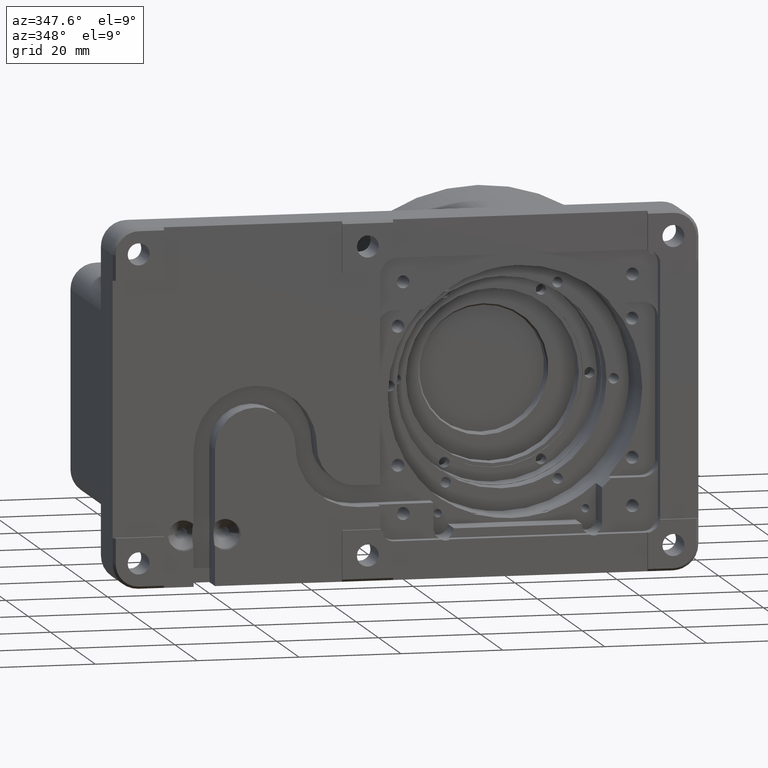
[diagram: clean part render]
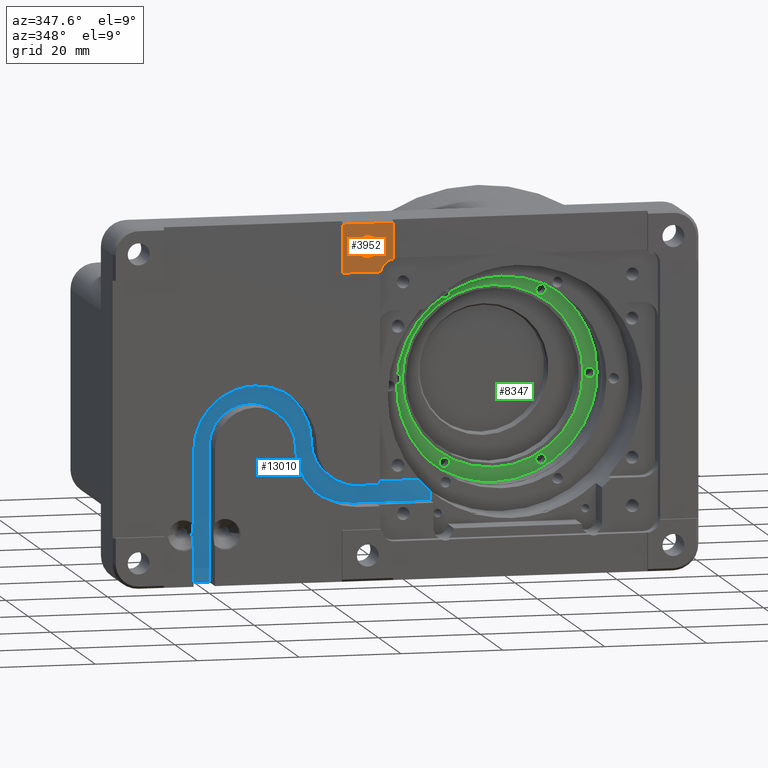
[diagram: same view with three faces highlighted in distinct colors, each labeled with its STEP entity id]
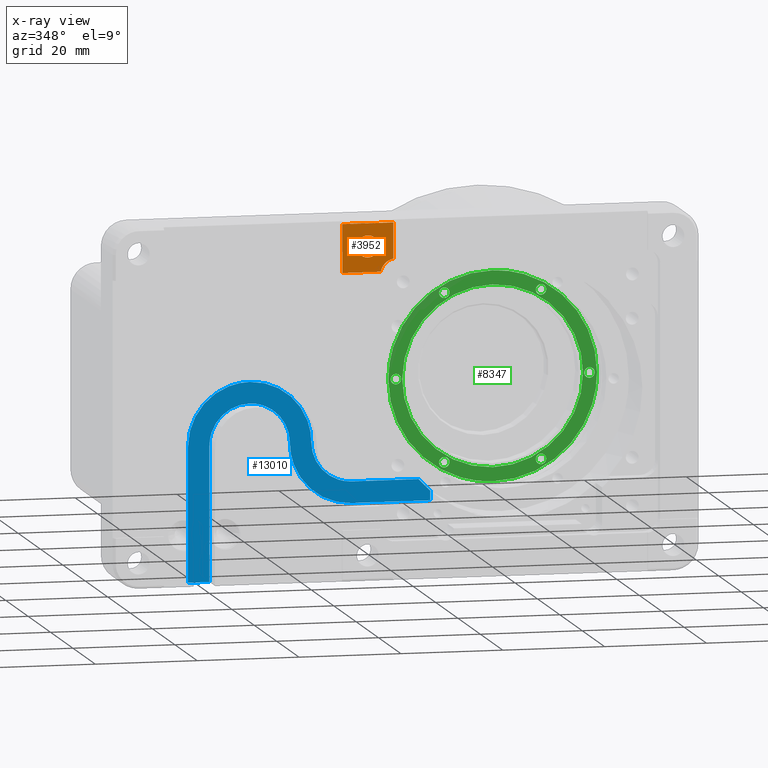
[diagram: x-ray of the same camera — body ghosted, the three highlighted faces saturated]
A machine part, auxiliary view with three faces highlighted in distinct colors.
The next image is the same camera in x-ray (body ghosted, the three faces saturated) — at least one of them is partly hidden behind the body in this view.
Their STEP definitions:

[orange] entity #3952 — the highlighted planar face has unit normal (-0, 1, 0).
#111 = VECTOR ( 'NONE', #4392, 1000.000000000000000 ) ;
#282 = ORIENTED_EDGE ( 'NONE', *, *, #55670, .F. ) ;
#355 = CARTESIAN_POINT ( 'NONE',  ( -27.85000000000000500, -25.00000000000000400, 30.28143434188408600 ) ) ;
#1597 = CARTESIAN_POINT ( 'NONE',  ( -81.77999999999998700, -25.00000000000000000, 25.00000000000000700 ) ) ;
#2105 = LINE ( 'NONE', #48283, #111 ) ;
#3683 = EDGE_CURVE ( 'NONE', #47504, #64228, #60884, .T. ) ;
#3704 = EDGE_CURVE ( 'NONE', #63735, #67301, #49895, .T. ) ;
#3900 = EDGE_LOOP ( 'NONE', ( #62045, #57249, #77045, #58884, #26476 ) ) ;
#3952 = ADVANCED_FACE ( 'NONE', ( #9898, #57921 ), #42573, .F. ) ;
#4392 = DIRECTION ( 'NONE',  ( 0.0000000000000000000, -0.0000000000000000000, 1.000000000000000000 ) ) ;
#4655 = CARTESIAN_POINT ( 'NONE',  ( -26.15037854727035300, -24.99999999999999600, 27.02422586694289200 ) ) ;
#5267 = VERTEX_POINT ( 'NONE', #6565 ) ;
#6565 = CARTESIAN_POINT ( 'NONE',  ( -35.00000000000002100, -24.99999999999999600, 34.50000000000000000 ) ) ;
#6691 = CARTESIAN_POINT ( 'NONE',  ( -28.12135926503834700, -24.99999999999999600, 31.08278080779742700 ) ) ;
#7412 = B_SPLINE_CURVE_WITH_KNOTS ( 'NONE', 3,
 ( #79767, #35951, #73459, #4655, #48557, #11001, #54829, #17323, #61108, #23584 ),
 .UNSPECIFIED., .F., .F.,
 ( 4, 2, 2, 2, 4 ),
 ( 0.0000000000000000000, 0.2500000000000000000, 0.5000000000000000000, 0.7500000000000000000, 1.000000000000000000 ),
 .UNSPECIFIED. ) ;
#8142 = CARTESIAN_POINT ( 'NONE',  ( -31.08278080779742700, -24.99999999999999600, 31.87864073496164600 ) ) ;
#8409 = CARTESIAN_POINT ( 'NONE',  ( -27.85000000000000500, -25.00000000000000000, 30.00000000000000000 ) ) ;
#8683 = CARTESIAN_POINT ( 'NONE',  ( -27.85000000000000500, -25.00000000000000400, 29.71856565811591400 ) ) ;
#8958 = CARTESIAN_POINT ( 'NONE',  ( -27.90595874516312900, -25.00000000000000400, 29.43724204862754900 ) ) ;
#9898 = FACE_OUTER_BOUND ( 'NONE', #3900, .T. ) ;
#10664 = CARTESIAN_POINT ( 'NONE',  ( -32.09404125483687400, -25.00000000000000400, 29.43724204862756000 ) ) ;
#11001 = CARTESIAN_POINT ( 'NONE',  ( -26.83979869103808700, -25.00000000000000700, 26.40284199608120000 ) ) ;
#11876 = CARTESIAN_POINT ( 'NONE',  ( -25.00000000000003200, -24.99999999999999300, 34.50000000000000000 ) ) ;
#13061 = CARTESIAN_POINT ( 'NONE',  ( -28.67872455205393600, -25.00000000000000700, 31.71928371115608800 ) ) ;
#13356 = CARTESIAN_POINT ( 'NONE',  ( -30.00000000000000000, -25.00000000000000000, 27.85000000000000500 ) ) ;
#14484 = CARTESIAN_POINT ( 'NONE',  ( -31.71928371115608800, -25.00000000000000700, 31.32127544794607100 ) ) ;
#14755 = CARTESIAN_POINT ( 'NONE',  ( -29.43724204862756000, -25.00000000000000400, 27.90595874516311900 ) ) ;
#15025 = DIRECTION ( 'NONE',  ( -0.0000000000000000000, 0.0000000000000000000, 1.000000000000000000 ) ) ;
#16746 = CARTESIAN_POINT ( 'NONE',  ( -29.71856565811591700, -25.00000000000000400, 27.85000000000000500 ) ) ;
#17009 = CARTESIAN_POINT ( 'NONE',  ( -31.71928371115608800, -25.00000000000000400, 28.67872455205393200 ) ) ;
#17017 = CARTESIAN_POINT ( 'NONE',  ( -25.00000000000000000, -25.00000000000000000, 35.17771043864000500 ) ) ;
#17323 = CARTESIAN_POINT ( 'NONE',  ( -27.30761997239375600, -25.00000000000000400, 25.60124278306354400 ) ) ;
#19173 = CARTESIAN_POINT ( 'NONE',  ( -27.45803989154987300, -25.00000000000000000, 25.00000000000000400 ) ) ;
#19311 = CARTESIAN_POINT ( 'NONE',  ( -29.43724204862754900, -25.00000000000000400, 32.09404125483686000 ) ) ;
#20482 = CARTESIAN_POINT ( 'NONE',  ( -30.28143434188408600, -25.00000000000000400, 32.14999999999999100 ) ) ;
#20756 = CARTESIAN_POINT ( 'NONE',  ( -32.09404125483686000, -25.00000000000000400, 30.56275795137245100 ) ) ;
#20897 = B_SPLINE_CURVE_WITH_KNOTS ( 'NONE', 3,
 ( #41923, #48223, #10664, #54514, #17009, #60778, #23252, #67060, #29600, #73395 ),
 .UNSPECIFIED., .F., .F.,
 ( 4, 2, 2, 2, 4 ),
 ( 0.0000000000000000000, 0.2500000000000000000, 0.5000000000000000000, 0.7500000000000000000, 1.000000000000000000 ),
 .UNSPECIFIED. ) ;
#21668 = DIRECTION ( 'NONE',  ( 0.0000000000000000000, -0.0000000000000000000, 1.000000000000000000 ) ) ;
#22214 = DIRECTION ( 'NONE',  ( -0.0000000000000000000, 1.000000000000000000, 0.0000000000000000000 ) ) ;
#23252 = CARTESIAN_POINT ( 'NONE',  ( -31.08278080779743000, -25.00000000000000400, 28.12135926503835000 ) ) ;
#23584 = CARTESIAN_POINT ( 'NONE',  ( -27.45803989154987300, -25.00000000000000000, 25.00000000000000400 ) ) ;
#24835 = VERTEX_POINT ( 'NONE', #66049 ) ;
#25615 = CARTESIAN_POINT ( 'NONE',  ( -30.00000000000000000, -25.00000000000000000, 32.14999999999999100 ) ) ;
#26476 = ORIENTED_EDGE ( 'NONE', *, *, #33625, .F. ) ;
#27068 = CARTESIAN_POINT ( 'NONE',  ( -32.14999999999999900, -25.00000000000000000, 30.00000000000000000 ) ) ;
#27770 = EDGE_CURVE ( 'NONE', #47504, #80780, #7412, .T. ) ;
#28515 = EDGE_CURVE ( 'NONE', #77257, #63735, #20897, .T. ) ;
#29600 = CARTESIAN_POINT ( 'NONE',  ( -30.28143434188408600, -25.00000000000000400, 27.85000000000000500 ) ) ;
#31326 = LINE ( 'NONE', #73436, #49934 ) ;
#33451 = ORIENTED_EDGE ( 'NONE', *, *, #57304, .F. ) ;
#33625 = EDGE_CURVE ( 'NONE', #5267, #64228, #31326, .T. ) ;
#35929 = DIRECTION ( 'NONE',  ( 1.000000000000000000, 0.0000000000000000000, 0.0000000000000000000 ) ) ;
#35951 = CARTESIAN_POINT ( 'NONE',  ( -25.30465349999737900, -25.00000000000000400, 27.40654405120166000 ) ) ;
#38949 = EDGE_CURVE ( 'NONE', #80780, #24835, #42677, .T. ) ;
#40367 = CARTESIAN_POINT ( 'NONE',  ( -81.77999999999998700, -25.00000000000000000, 35.88000000000000300 ) ) ;
#40756 = VECTOR ( 'NONE', #64326, 1000.000000000000000 ) ;
#41923 = CARTESIAN_POINT ( 'NONE',  ( -32.14999999999999900, -25.00000000000000000, 30.00000000000000000 ) ) ;
#42573 = PLANE ( 'NONE',  #60283 ) ;
#42677 = LINE ( 'NONE', #1597, #40756 ) ;
#44260 = CARTESIAN_POINT ( 'NONE',  ( -27.90595874516311900, -25.00000000000000400, 30.56275795137245400 ) ) ;
#45697 = CARTESIAN_POINT ( 'NONE',  ( -30.56275795137245400, -25.00000000000000400, 32.09404125483686000 ) ) ;
#47504 = VERTEX_POINT ( 'NONE', #73279 ) ;
#47760 = ORIENTED_EDGE ( 'NONE', *, *, #3704, .F. ) ;
#48223 = CARTESIAN_POINT ( 'NONE',  ( -32.14999999999998400, -25.00000000000000400, 29.71856565811591700 ) ) ;
#48283 = CARTESIAN_POINT ( 'NONE',  ( -35.00000000000000000, -25.00000000000000000, 35.88000000000000300 ) ) ;
#48557 = CARTESIAN_POINT ( 'NONE',  ( -26.40284199608119700, -25.00000000000000400, 26.83979869103808700 ) ) ;
#49895 = B_SPLINE_CURVE_WITH_KNOTS ( 'NONE', 3,
 ( #72882, #16746, #14755, #72238, #74172, #73929, #73140, #8958, #8683, #8409 ),
 .UNSPECIFIED., .F., .F.,
 ( 4, 2, 2, 2, 4 ),
 ( 0.0000000000000000000, 0.2500000000000000000, 0.5000000000000000000, 0.7500000000000000000, 1.000000000000000000 ),
 .UNSPECIFIED. ) ;
#49934 = VECTOR ( 'NONE', #35929, 1000.000000000000000 ) ;
#50574 = CARTESIAN_POINT ( 'NONE',  ( -28.28071628884392300, -25.00000000000000400, 31.32127544794605700 ) ) ;
#52019 = CARTESIAN_POINT ( 'NONE',  ( -31.32127544794605700, -25.00000000000000400, 31.71928371115608100 ) ) ;
#54514 = CARTESIAN_POINT ( 'NONE',  ( -31.87864073496163900, -24.99999999999999600, 28.91721919220256300 ) ) ;
#54829 = CARTESIAN_POINT ( 'NONE',  ( -27.02422586694289200, -25.00000000000000400, 26.15037854727036800 ) ) ;
#55670 = EDGE_CURVE ( 'NONE', #67301, #76318, #61697, .T. ) ;
#56846 = CARTESIAN_POINT ( 'NONE',  ( -28.91721919220257000, -25.00000000000000400, 31.87864073496164600 ) ) ;
#57249 = ORIENTED_EDGE ( 'NONE', *, *, #38949, .F. ) ;
#57304 = EDGE_CURVE ( 'NONE', #76318, #77257, #74988, .T. ) ;
#57921 = FACE_BOUND ( 'NONE', #74844, .T. ) ;
#58291 = CARTESIAN_POINT ( 'NONE',  ( -31.87864073496164600, -25.00000000000000400, 31.08278080779743400 ) ) ;
#58884 = ORIENTED_EDGE ( 'NONE', *, *, #3683, .T. ) ;
#60283 = AXIS2_PLACEMENT_3D ( 'NONE', #40367, #22214, #21668 ) ;
#60778 = CARTESIAN_POINT ( 'NONE',  ( -31.32127544794606400, -25.00000000000000700, 28.28071628884392300 ) ) ;
#60884 = LINE ( 'NONE', #17017, #64792 ) ;
#61108 = CARTESIAN_POINT ( 'NONE',  ( -27.40654405120166700, -25.00000000000000400, 25.30465349999740000 ) ) ;
#61697 = B_SPLINE_CURVE_WITH_KNOTS ( 'NONE', 3,
 ( #75456, #355, #44260, #6691, #50574, #13061, #56846, #19311, #63097, #25615 ),
 .UNSPECIFIED., .F., .F.,
 ( 4, 2, 2, 2, 4 ),
 ( 0.0000000000000000000, 0.2500000000000000000, 0.5000000000000000000, 0.7500000000000000000, 1.000000000000000000 ),
 .UNSPECIFIED. ) ;
#62045 = ORIENTED_EDGE ( 'NONE', *, *, #66841, .F. ) ;
#63097 = CARTESIAN_POINT ( 'NONE',  ( -29.71856565811591400, -25.00000000000000400, 32.14999999999999100 ) ) ;
#63735 = VERTEX_POINT ( 'NONE', #13356 ) ;
#64160 = ORIENTED_EDGE ( 'NONE', *, *, #28515, .F. ) ;
#64228 = VERTEX_POINT ( 'NONE', #11876 ) ;
#64326 = DIRECTION ( 'NONE',  ( -1.000000000000000000, -0.0000000000000000000, -0.0000000000000000000 ) ) ;
#64514 = CARTESIAN_POINT ( 'NONE',  ( -32.14999999999999100, -25.00000000000000400, 30.28143434188408600 ) ) ;
#64633 = CARTESIAN_POINT ( 'NONE',  ( -32.14999999999999900, -25.00000000000000000, 30.00000000000000000 ) ) ;
#64792 = VECTOR ( 'NONE', #15025, 1000.000000000000000 ) ;
#66049 = CARTESIAN_POINT ( 'NONE',  ( -35.00000000000000000, -25.00000000000000400, 25.00000000000000700 ) ) ;
#66841 = EDGE_CURVE ( 'NONE', #24835, #5267, #2105, .T. ) ;
#67060 = CARTESIAN_POINT ( 'NONE',  ( -30.56275795137245100, -25.00000000000000400, 27.90595874516312900 ) ) ;
#67301 = VERTEX_POINT ( 'NONE', #71476 ) ;
#71476 = CARTESIAN_POINT ( 'NONE',  ( -27.85000000000000500, -25.00000000000000000, 30.00000000000000000 ) ) ;
#72238 = CARTESIAN_POINT ( 'NONE',  ( -28.91721919220256300, -24.99999999999999600, 28.12135926503834700 ) ) ;
#72882 = CARTESIAN_POINT ( 'NONE',  ( -30.00000000000000000, -25.00000000000000000, 27.85000000000000500 ) ) ;
#73070 = CARTESIAN_POINT ( 'NONE',  ( -30.00000000000000000, -25.00000000000000000, 32.14999999999999100 ) ) ;
#73140 = CARTESIAN_POINT ( 'NONE',  ( -28.12135926503835000, -25.00000000000000400, 28.91721919220257000 ) ) ;
#73279 = CARTESIAN_POINT ( 'NONE',  ( -25.00000000000000000, -25.00000000000000000, 27.45803989154985200 ) ) ;
#73395 = CARTESIAN_POINT ( 'NONE',  ( -30.00000000000000000, -25.00000000000000000, 27.85000000000000500 ) ) ;
#73436 = CARTESIAN_POINT ( 'NONE',  ( 32.10000000000000100, -24.99999999999999300, 34.50000000000000000 ) ) ;
#73459 = CARTESIAN_POINT ( 'NONE',  ( -25.60124278306353300, -25.00000000000000400, 27.30761997239375600 ) ) ;
#73929 = CARTESIAN_POINT ( 'NONE',  ( -28.28071628884392300, -25.00000000000000700, 28.67872455205393600 ) ) ;
#74172 = CARTESIAN_POINT ( 'NONE',  ( -28.67872455205393200, -25.00000000000000400, 28.28071628884392300 ) ) ;
#74844 = EDGE_LOOP ( 'NONE', ( #33451, #282, #47760, #64160 ) ) ;
#74988 = B_SPLINE_CURVE_WITH_KNOTS ( 'NONE', 3,
 ( #76925, #20482, #45697, #8142, #52019, #14484, #58291, #20756, #64514, #27068 ),
 .UNSPECIFIED., .F., .F.,
 ( 4, 2, 2, 2, 4 ),
 ( 0.0000000000000000000, 0.2500000000000000000, 0.5000000000000000000, 0.7500000000000000000, 1.000000000000000000 ),
 .UNSPECIFIED. ) ;
#75456 = CARTESIAN_POINT ( 'NONE',  ( -27.85000000000000500, -25.00000000000000000, 30.00000000000000000 ) ) ;
#76318 = VERTEX_POINT ( 'NONE', #73070 ) ;
#76925 = CARTESIAN_POINT ( 'NONE',  ( -30.00000000000000000, -25.00000000000000000, 32.14999999999999100 ) ) ;
#77045 = ORIENTED_EDGE ( 'NONE', *, *, #27770, .F. ) ;
#77257 = VERTEX_POINT ( 'NONE', #64633 ) ;
#79767 = CARTESIAN_POINT ( 'NONE',  ( -25.00000000000000000, -25.00000000000000000, 27.45803989154985200 ) ) ;
#80780 = VERTEX_POINT ( 'NONE', #19173 ) ;

[blue] entity #13010 — the highlighted planar face has unit normal (0, 1, -0).
#86 = EDGE_CURVE ( 'NONE', #35732, #36363, #39329, .T. ) ;
#249 = VECTOR ( 'NONE', #79041, 1000.000000000000000 ) ;
#1078 = CARTESIAN_POINT ( 'NONE',  ( -48.02141005506991400, -19.50000000000000400, -1.597087532001359600 ) ) ;
#1203 = ORIENTED_EDGE ( 'NONE', *, *, #64711, .F. ) ;
#1426 = CARTESIAN_POINT ( 'NONE',  ( -59.90000000000000600, -19.50000000000000000, -8.500000000000000000 ) ) ;
#1857 = CARTESIAN_POINT ( 'NONE',  ( -63.78506938768663300, -19.50000000000000400, -5.332850599252706700 ) ) ;
#2740 = CARTESIAN_POINT ( 'NONE',  ( -38.90291246799864000, -19.50000000000000400, -12.47858994493011100 ) ) ;
#3048 = B_SPLINE_CURVE_WITH_KNOTS ( 'NONE', 3,
 ( #34030, #71547, #40378, #2740, #46630, #9081, #52948, #15421, #59216, #21679 ),
 .UNSPECIFIED., .F., .F.,
 ( 4, 2, 2, 2, 4 ),
 ( 0.0000000000000000000, 0.2499999999999999400, 0.4999999999999998900, 0.7499999999999997800, 1.000000000000000000 ),
 .UNSPECIFIED. ) ;
#3430 = CARTESIAN_POINT ( 'NONE',  ( -42.32403120698202100, -19.50000000000000700, -1.063984688303528200 ) ) ;
#3717 = ORIENTED_EDGE ( 'NONE', *, *, #39649, .F. ) ;
#3735 = CARTESIAN_POINT ( 'NONE',  ( -39.90000000000000600, -19.50000000000000400, -8.500000000000001800 ) ) ;
#3988 = VERTEX_POINT ( 'NONE', #15687 ) ;
#4586 = ORIENTED_EDGE ( 'NONE', *, *, #72266, .F. ) ;
#4635 = CARTESIAN_POINT ( 'NONE',  ( -64.09999999999999400, -19.50000000000000000, -35.00000000000000000 ) ) ;
#5747 = EDGE_CURVE ( 'NONE', #56606, #14358, #6638, .T. ) ;
#6367 = LINE ( 'NONE', #9432, #19143 ) ;
#6638 = LINE ( 'NONE', #19160, #71367 ) ;
#6816 = CARTESIAN_POINT ( 'NONE',  ( -52.00000000000001400, -19.50000000000000000, -0.5999999999999963100 ) ) ;
#7080 = AXIS2_PLACEMENT_3D ( 'NONE', #50832, #19576, #63340 ) ;
#7292 = CARTESIAN_POINT ( 'NONE',  ( -52.00000000000001400, -19.50000000000000000, 3.600000000000005900 ) ) ;
#7423 = CARTESIAN_POINT ( 'NONE',  ( -50.96589241819337000, -19.50000000000000400, -0.5999999999999963100 ) ) ;
#8219 = CARTESIAN_POINT ( 'NONE',  ( -61.67596879301800100, -19.50000000000000400, -1.063984688303528200 ) ) ;
#8657 = CARTESIAN_POINT ( 'NONE',  ( -52.00000000000001400, -19.50000000000000000, -0.5999999999999963100 ) ) ;
#9081 = CARTESIAN_POINT ( 'NONE',  ( -36.85491908780183200, -19.50000000000000400, -14.81736805494562000 ) ) ;
#9351 = CARTESIAN_POINT ( 'NONE',  ( -18.86902223221987600, -19.50000000000000000, -16.39999999999991000 ) ) ;
#9432 = CARTESIAN_POINT ( 'NONE',  ( -16.54999999999997600, -19.50000000000000000, -35.77199999999999800 ) ) ;
#9745 = CARTESIAN_POINT ( 'NONE',  ( -40.21493061231338100, -19.50000000000000400, -5.332850599252714700 ) ) ;
#9847 = CARTESIAN_POINT ( 'NONE',  ( -16.54999999999998600, -19.50000000000000000, -20.60000000000000100 ) ) ;
#11373 = VERTEX_POINT ( 'NONE', #1426 ) ;
#13010 = ADVANCED_FACE ( 'NONE', ( #14776 ), #31949, .F. ) ;
#13667 = B_SPLINE_CURVE_WITH_KNOTS ( 'NONE', 3,
 ( #19766, #57307, #69902, #32399, #76190, #38720, #1078, #44973, #7423, #51290 ),
 .UNSPECIFIED., .F., .F.,
 ( 4, 2, 2, 2, 4 ),
 ( 0.0000000000000000000, 0.2500000000000000000, 0.5000000000000000000, 0.7500000000000000000, 1.000000000000000000 ),
 .UNSPECIFIED. ) ;
#14358 = VERTEX_POINT ( 'NONE', #4635 ) ;
#14557 = CARTESIAN_POINT ( 'NONE',  ( -58.09378966248791400, -19.50000000000000400, 2.072815299086522500 ) ) ;
#14776 = FACE_OUTER_BOUND ( 'NONE', #44775, .T. ) ;
#15001 = CARTESIAN_POINT ( 'NONE',  ( -53.03410758180665900, -19.50000000000000000, -0.5999999999999963100 ) ) ;
#15066 = CARTESIAN_POINT ( 'NONE',  ( -33.58388629618485800, -19.50000000000000000, -20.60000000000000100 ) ) ;
#15421 = CARTESIAN_POINT ( 'NONE',  ( -34.06780828643831400, -19.50000000000000400, -16.19438414567969500 ) ) ;
#15500 = CARTESIAN_POINT ( 'NONE',  ( -43.78506938768661200, -19.50000000000000400, -11.66714940074729700 ) ) ;
#15598 = CARTESIAN_POINT ( 'NONE',  ( -42.57281529908653500, -19.50000000000000400, -14.59378966248788600 ) ) ;
#15685 = CARTESIAN_POINT ( 'NONE',  ( -41.67596879301798700, -19.50000000000000700, -15.93601531169647600 ) ) ;
#15687 = CARTESIAN_POINT ( 'NONE',  ( -16.54999999999991900, -19.50000000000000400, -18.73759589701979400 ) ) ;
#15882 = CARTESIAN_POINT ( 'NONE',  ( -39.43601531169648000, -19.50000000000000400, -18.17596879301797900 ) ) ;
#16118 = CARTESIAN_POINT ( 'NONE',  ( -39.90000000000000600, -19.50000000000000400, -8.500000000000001800 ) ) ;
#16174 = CARTESIAN_POINT ( 'NONE',  ( -38.09378966248788600, -19.49999999999999300, -19.07281529908651800 ) ) ;
#16260 = ORIENTED_EDGE ( 'NONE', *, *, #69876, .F. ) ;
#16272 = CARTESIAN_POINT ( 'NONE',  ( -32.00000000000000000, -19.50000000000000000, -20.60000000000000100 ) ) ;
#17505 = LINE ( 'NONE', #37065, #80224 ) ;
#19143 = VECTOR ( 'NONE', #46978, 1000.000000000000000 ) ;
#19160 = CARTESIAN_POINT ( 'NONE',  ( 32.10000000000000100, -19.50000000000000000, -35.00000000000000000 ) ) ;
#19576 = DIRECTION ( 'NONE',  ( 0.0000000000000000000, 1.000000000000000000, -0.0000000000000000000 ) ) ;
#19679 = CARTESIAN_POINT ( 'NONE',  ( -32.00000000000000000, -19.50000000000000000, -16.40000000000000200 ) ) ;
#19766 = CARTESIAN_POINT ( 'NONE',  ( -44.10000000000000100, -19.50000000000000000, -8.499999999999978700 ) ) ;
#20617 = VERTEX_POINT ( 'NONE', #51819 ) ;
#20654 = CARTESIAN_POINT ( 'NONE',  ( -18.86902223221987600, -19.50000000000000000, -16.39999999999991000 ) ) ;
#20834 = CARTESIAN_POINT ( 'NONE',  ( -53.58388629618487200, -19.50000000000000400, 3.600000000000005000 ) ) ;
#21205 = VERTEX_POINT ( 'NONE', #9847 ) ;
#21262 = CARTESIAN_POINT ( 'NONE',  ( -55.97858994493010700, -19.49999999999999300, -1.597087532001361600 ) ) ;
#21679 = CARTESIAN_POINT ( 'NONE',  ( -32.00000000000000000, -19.50000000000000000, -16.40000000000000200 ) ) ;
#21915 = B_SPLINE_CURVE_WITH_KNOTS ( 'NONE', 3,
 ( #20654, #51914, #26973, #70775 ),
 .UNSPECIFIED., .F., .F.,
 ( 4, 4 ),
 ( 0.0000000000000000000, 1.000000000000000000 ),
 .UNSPECIFIED. ) ;
#22574 = ORIENTED_EDGE ( 'NONE', *, *, #76206, .F. ) ;
#23627 = EDGE_CURVE ( 'NONE', #20617, #40205, #24691, .T. ) ;
#24184 = EDGE_CURVE ( 'NONE', #63225, #11373, #38975, .T. ) ;
#24691 = B_SPLINE_CURVE_WITH_KNOTS ( 'NONE', 3,
 ( #77000, #39509, #1857, #45774, #8219, #52102, #14557, #58364, #20834, #64591 ),
 .UNSPECIFIED., .F., .F.,
 ( 4, 2, 2, 2, 4 ),
 ( 0.0000000000000000000, 0.2500000000000000000, 0.5000000000000000000, 0.7500000000000000000, 1.000000000000000000 ),
 .UNSPECIFIED. ) ;
#25742 = CARTESIAN_POINT ( 'NONE',  ( -44.10000000000000100, -19.50000000000000000, -8.499999999999978700 ) ) ;
#26973 = CARTESIAN_POINT ( 'NONE',  ( -17.37323931261054700, -19.50000000000000400, -18.01046896469664200 ) ) ;
#27594 = CARTESIAN_POINT ( 'NONE',  ( -58.31736805494563200, -19.50000000000000700, -3.645080912198171300 ) ) ;
#28154 = CARTESIAN_POINT ( 'NONE',  ( -59.90000000000000600, -19.50000000000000000, -35.77199999999999800 ) ) ;
#28410 = CARTESIAN_POINT ( 'NONE',  ( -50.41611370381514900, -19.50000000000000000, 3.600000000000005400 ) ) ;
#29243 = EDGE_CURVE ( 'NONE', #47010, #3988, #21915, .T. ) ;
#30105 = DIRECTION ( 'NONE',  ( -1.000000000000000000, 0.0000000000000000000, -0.0000000000000000000 ) ) ;
#31073 = EDGE_CURVE ( 'NONE', #35244, #47010, #33689, .T. ) ;
#31949 = PLANE ( 'NONE',  #7080 ) ;
#32399 = CARTESIAN_POINT ( 'NONE',  ( -45.09708753200136800, -19.49999999999999300, -4.521410055069890400 ) ) ;
#33689 = LINE ( 'NONE', #66365, #249 ) ;
#33894 = CARTESIAN_POINT ( 'NONE',  ( -59.69438414567970600, -19.50000000000000400, -6.432191713561683100 ) ) ;
#33942 = ORIENTED_EDGE ( 'NONE', *, *, #23627, .F. ) ;
#34030 = CARTESIAN_POINT ( 'NONE',  ( -39.90000000000000600, -19.50000000000000400, -8.500000000000001800 ) ) ;
#34449 = DIRECTION ( 'NONE',  ( -0.0000000000000000000, -0.0000000000000000000, -1.000000000000000000 ) ) ;
#34712 = CARTESIAN_POINT ( 'NONE',  ( -48.83285059925273000, -19.50000000000000700, 3.285069387686624200 ) ) ;
#35244 = VERTEX_POINT ( 'NONE', #19679 ) ;
#35732 = VERTEX_POINT ( 'NONE', #69433 ) ;
#35921 = CARTESIAN_POINT ( 'NONE',  ( -44.10000000000000900, -19.50000000000000400, -10.08388629618485400 ) ) ;
#36169 = VECTOR ( 'NONE', #34449, 1000.000000000000000 ) ;
#36363 = VERTEX_POINT ( 'NONE', #73675 ) ;
#36422 = ORIENTED_EDGE ( 'NONE', *, *, #86, .F. ) ;
#36846 = ORIENTED_EDGE ( 'NONE', *, *, #59770, .F. ) ;
#37065 = CARTESIAN_POINT ( 'NONE',  ( -64.09999999999999400, -19.49999999999999600, -35.53000000000000100 ) ) ;
#38720 = CARTESIAN_POINT ( 'NONE',  ( -47.14508091219816100, -19.50000000000000700, -2.182631945054373600 ) ) ;
#38975 = B_SPLINE_CURVE_WITH_KNOTS ( 'NONE', 3,
 ( #8657, #15001, #58791, #21262, #65066, #27594, #71400, #33894, #77716, #40218 ),
 .UNSPECIFIED., .F., .F.,
 ( 4, 2, 2, 2, 4 ),
 ( 0.0000000000000000000, 0.2500000000000000000, 0.5000000000000000000, 0.7500000000000000000, 1.000000000000000000 ),
 .UNSPECIFIED. ) ;
#39329 = B_SPLINE_CURVE_WITH_KNOTS ( 'NONE', 3,
 ( #16272, #15066, #55671, #16174, #15882, #15685, #15598, #15500, #35921, #25742 ),
 .UNSPECIFIED., .F., .F.,
 ( 4, 2, 2, 2, 4 ),
 ( 0.0000000000000000000, 0.2500000000000000000, 0.5000000000000000000, 0.7500000000000000000, 1.000000000000000000 ),
 .UNSPECIFIED. ) ;
#39509 = CARTESIAN_POINT ( 'NONE',  ( -64.10000000000002300, -19.50000000000000000, -6.916113703815148600 ) ) ;
#39649 = EDGE_CURVE ( 'NONE', #40205, #62060, #45503, .T. ) ;
#40205 = VERTEX_POINT ( 'NONE', #7292 ) ;
#40218 = CARTESIAN_POINT ( 'NONE',  ( -59.90000000000000600, -19.50000000000000000, -8.500000000000000000 ) ) ;
#40378 = CARTESIAN_POINT ( 'NONE',  ( -39.69438414567970600, -19.50000000000000400, -10.56780828643832000 ) ) ;
#41048 = CARTESIAN_POINT ( 'NONE',  ( -44.56398468830353500, -19.50000000000000400, 1.175968793017983400 ) ) ;
#44258 = ORIENTED_EDGE ( 'NONE', *, *, #5747, .F. ) ;
#44775 = EDGE_LOOP ( 'NONE', ( #3717, #33942, #52139, #44258, #16260, #58042, #36846, #36422, #22574, #1203, #76560, #77272, #4586 ) ) ;
#44973 = CARTESIAN_POINT ( 'NONE',  ( -49.93219171356170700, -19.50000000000000400, -0.8056158543203036900 ) ) ;
#45503 = B_SPLINE_CURVE_WITH_KNOTS ( 'NONE', 3,
 ( #72221, #28410, #34712, #78541, #41048, #3430, #47285, #9745, #53623, #16118 ),
 .UNSPECIFIED., .F., .F.,
 ( 4, 2, 2, 2, 4 ),
 ( 0.0000000000000000000, 0.2500000000000000000, 0.5000000000000000000, 0.7500000000000000000, 1.000000000000000000 ),
 .UNSPECIFIED. ) ;
#45774 = CARTESIAN_POINT ( 'NONE',  ( -62.57281529908652100, -19.49999999999999300, -2.406210337512112700 ) ) ;
#46630 = CARTESIAN_POINT ( 'NONE',  ( -38.31736805494563200, -19.50000000000000400, -13.35491908780182900 ) ) ;
#46978 = DIRECTION ( 'NONE',  ( -0.0000000000000000000, -0.0000000000000000000, -1.000000000000000000 ) ) ;
#47010 = VERTEX_POINT ( 'NONE', #9351 ) ;
#47275 = DIRECTION ( 'NONE',  ( -1.000000000000000000, 0.0000000000000000000, -0.0000000000000000000 ) ) ;
#47285 = CARTESIAN_POINT ( 'NONE',  ( -41.42718470091347900, -19.50000000000000400, -2.406210337512118900 ) ) ;
#50832 = CARTESIAN_POINT ( 'NONE',  ( -15.59899999999999800, -19.50000000000000000, -35.77199999999999800 ) ) ;
#51290 = CARTESIAN_POINT ( 'NONE',  ( -52.00000000000001400, -19.50000000000000000, -0.5999999999999963100 ) ) ;
#51819 = CARTESIAN_POINT ( 'NONE',  ( -64.10000000000000900, -19.49999999999999600, -8.500000000000000000 ) ) ;
#51914 = CARTESIAN_POINT ( 'NONE',  ( -18.14848557420786400, -19.50000000000000400, -17.22901354994843400 ) ) ;
#52102 = CARTESIAN_POINT ( 'NONE',  ( -59.43601531169648700, -19.50000000000000700, 1.175968793017982700 ) ) ;
#52139 = ORIENTED_EDGE ( 'NONE', *, *, #56190, .T. ) ;
#52844 = LINE ( 'NONE', #28154, #36169 ) ;
#52948 = CARTESIAN_POINT ( 'NONE',  ( -35.97858994493010700, -19.50000000000000000, -15.40291246799863200 ) ) ;
#53623 = CARTESIAN_POINT ( 'NONE',  ( -39.90000000000000600, -19.50000000000000400, -6.916113703815150300 ) ) ;
#55051 = CARTESIAN_POINT ( 'NONE',  ( -59.90000000000000600, -19.50000000000000000, -35.00000000000000000 ) ) ;
#55671 = CARTESIAN_POINT ( 'NONE',  ( -35.16714940074730600, -19.50000000000000400, -20.28506938768661900 ) ) ;
#55785 = VECTOR ( 'NONE', #47275, 1000.000000000000000 ) ;
#56190 = EDGE_CURVE ( 'NONE', #20617, #14358, #17505, .T. ) ;
#56606 = VERTEX_POINT ( 'NONE', #55051 ) ;
#57307 = CARTESIAN_POINT ( 'NONE',  ( -44.10000000000000100, -19.50000000000000000, -7.465892418193355700 ) ) ;
#57774 = LINE ( 'NONE', #78527, #55785 ) ;
#58042 = ORIENTED_EDGE ( 'NONE', *, *, #24184, .F. ) ;
#58364 = CARTESIAN_POINT ( 'NONE',  ( -55.16714940074731300, -19.50000000000000400, 3.285069387686624200 ) ) ;
#58791 = CARTESIAN_POINT ( 'NONE',  ( -54.06780828643833600, -19.50000000000000400, -0.8056158543203048000 ) ) ;
#59216 = CARTESIAN_POINT ( 'NONE',  ( -33.03410758180662300, -19.50000000000000000, -16.39999999999999500 ) ) ;
#59770 = EDGE_CURVE ( 'NONE', #36363, #63225, #13667, .T. ) ;
#62060 = VERTEX_POINT ( 'NONE', #3735 ) ;
#63225 = VERTEX_POINT ( 'NONE', #6816 ) ;
#63340 = DIRECTION ( 'NONE',  ( 0.0000000000000000000, 0.0000000000000000000, 1.000000000000000000 ) ) ;
#64591 = CARTESIAN_POINT ( 'NONE',  ( -52.00000000000001400, -19.50000000000000000, 3.600000000000005900 ) ) ;
#64711 = EDGE_CURVE ( 'NONE', #3988, #21205, #6367, .T. ) ;
#65066 = CARTESIAN_POINT ( 'NONE',  ( -56.85491908780183900, -19.50000000000000400, -2.182631945054375900 ) ) ;
#66365 = CARTESIAN_POINT ( 'NONE',  ( -15.59899999999999800, -19.50000000000000000, -16.40000000000000200 ) ) ;
#69433 = CARTESIAN_POINT ( 'NONE',  ( -32.00000000000000000, -19.50000000000000000, -20.60000000000000100 ) ) ;
#69876 = EDGE_CURVE ( 'NONE', #11373, #56606, #52844, .T. ) ;
#69902 = CARTESIAN_POINT ( 'NONE',  ( -44.30561585432031500, -19.50000000000000400, -6.432191713561683100 ) ) ;
#70775 = CARTESIAN_POINT ( 'NONE',  ( -16.54999999999991900, -19.50000000000000400, -18.73759589701979400 ) ) ;
#71367 = VECTOR ( 'NONE', #30105, 1000.000000000000000 ) ;
#71400 = CARTESIAN_POINT ( 'NONE',  ( -58.90291246799865400, -19.50000000000000400, -4.521410055069892100 ) ) ;
#71547 = CARTESIAN_POINT ( 'NONE',  ( -39.90000000000001300, -19.50000000000000400, -9.534107581806639000 ) ) ;
#72221 = CARTESIAN_POINT ( 'NONE',  ( -52.00000000000001400, -19.50000000000000000, 3.600000000000005900 ) ) ;
#72266 = EDGE_CURVE ( 'NONE', #62060, #35244, #3048, .T. ) ;
#73675 = CARTESIAN_POINT ( 'NONE',  ( -44.10000000000000100, -19.50000000000000000, -8.499999999999978700 ) ) ;
#76190 = CARTESIAN_POINT ( 'NONE',  ( -45.68263194505438900, -19.50000000000000400, -3.645080912198168700 ) ) ;
#76206 = EDGE_CURVE ( 'NONE', #21205, #35732, #57774, .T. ) ;
#76560 = ORIENTED_EDGE ( 'NONE', *, *, #29243, .F. ) ;
#77000 = CARTESIAN_POINT ( 'NONE',  ( -64.10000000000000900, -19.49999999999999600, -8.500000000000000000 ) ) ;
#77272 = ORIENTED_EDGE ( 'NONE', *, *, #31073, .F. ) ;
#77716 = CARTESIAN_POINT ( 'NONE',  ( -59.90000000000000600, -19.50000000000000400, -7.465892418193361000 ) ) ;
#78527 = CARTESIAN_POINT ( 'NONE',  ( -15.59899999999999800, -19.50000000000000000, -20.60000000000000100 ) ) ;
#78541 = CARTESIAN_POINT ( 'NONE',  ( -45.90621033751211400, -19.50000000000000400, 2.072815299086525200 ) ) ;
#79041 = DIRECTION ( 'NONE',  ( 1.000000000000000000, -0.0000000000000000000, 0.0000000000000000000 ) ) ;
#80224 = VECTOR ( 'NONE', #80863, 1000.000000000000000 ) ;
#80863 = DIRECTION ( 'NONE',  ( -0.0000000000000000000, -0.0000000000000000000, -1.000000000000000000 ) ) ;

[green] entity #8347 — the highlighted planar face has unit normal (0, -1, -0).
#59 = CARTESIAN_POINT ( 'NONE',  ( -19.13537293096322100, 0.0000000000000000000, -1.025072639140788500 ) ) ;
#198 = CARTESIAN_POINT ( 'NONE',  ( -16.84476541190646900, -0.0000000000000000000, -5.716218328537738800 ) ) ;
#645 = CARTESIAN_POINT ( 'NONE',  ( 4.605588407540002600, -0.0000000000000000000, 17.18167131515601300 ) ) ;
#929 = CARTESIAN_POINT ( 'NONE',  ( 17.75000000000000700, -0.0000000000000000000, 1.165666391839071100 ) ) ;
#1412 = CARTESIAN_POINT ( 'NONE',  ( 19.26728351683444600, -0.0000000000000000000, 0.9985855835583691300 ) ) ;
#1536 = CARTESIAN_POINT ( 'NONE',  ( -10.34518201746626400, -0.0000000000000000000, -17.04532616468310700 ) ) ;
#1542 = FACE_BOUND ( 'NONE', #42995, .T. ) ;
#1565 = CARTESIAN_POINT ( 'NONE',  ( -5.318835094366035900, -0.0000000000000000000, 19.84370990658611700 ) ) ;
#1615 = CARTESIAN_POINT ( 'NONE',  ( -17.97500000000001200, 0.0000000000000000000, -0.1355483029900326800 ) ) ;
#1692 = CARTESIAN_POINT ( 'NONE',  ( -9.064636258101142400, -0.0000000000000000000, 17.38944060429799900 ) ) ;
#1790 = CARTESIAN_POINT ( 'NONE',  ( -19.51727790274905800, 0.0000000000000000000, 0.8950340974409123400 ) ) ;
#1797 = CARTESIAN_POINT ( 'NONE',  ( -9.937397554991045800, 0.0000000000000000000, -15.52038631585813800 ) ) ;
#1827 = CARTESIAN_POINT ( 'NONE',  ( -20.50000000000000400, -0.0000000000000000000, 1.346417475460221200 ) ) ;
#1855 = B_SPLINE_CURVE_WITH_KNOTS ( 'NONE', 3,
 ( #67567, #30104, #36396, #80204, #42687, #5106, #48991, #11444, #55279, #17749, #61524, #24030, #67845, #30380, #74135, #36674, #80478, #42953, #5373, #49267 ),
 .UNSPECIFIED., .F., .F.,
 ( 4, 2, 2, 2, 2, 2, 2, 2, 2, 4 ),
 ( 0.0000000000000000000, 0.1250000000000012200, 0.2500000000000024400, 0.3750000000000036600, 0.5000000000000048800, 0.5625000000000055500, 0.6250000000000061100, 0.7500000000000041100, 0.8750000000000021100, 1.000000000000000000 ),
 .UNSPECIFIED. ) ;
#1918 = EDGE_CURVE ( 'NONE', #59871, #29205, #33555, .T. ) ;
#1977 = CARTESIAN_POINT ( 'NONE',  ( -8.692778237472765600, 0.0000000000000000000, 15.82039350166286300 ) ) ;
#2174 = VERTEX_POINT ( 'NONE', #30363 ) ;
#2226 = VERTEX_POINT ( 'NONE', #78460 ) ;
#2421 = VERTEX_POINT ( 'NONE', #3415 ) ;
#2556 = EDGE_LOOP ( 'NONE', ( #57005, #73868, #25676, #12650 ) ) ;
#2757 = CARTESIAN_POINT ( 'NONE',  ( 19.99858502445016500, -0.0000000000000000000, -0.2672843571811245900 ) ) ;
#2950 = CARTESIAN_POINT ( 'NONE',  ( 9.721078080016088300, -0.0000000000000000000, -15.45195140301590600 ) ) ;
#3024 = CARTESIAN_POINT ( 'NONE',  ( 10.83010976743498300, 0.0000000000000000000, -14.11125214336319400 ) ) ;
#3239 = CARTESIAN_POINT ( 'NONE',  ( 10.40047390412293800, 0.0000000000000000000, -16.94785143043442600 ) ) ;
#3335 = CARTESIAN_POINT ( 'NONE',  ( 18.17971302902293100, 0.0000000000000000000, 0.6290804913597823900 ) ) ;
#3415 = CARTESIAN_POINT ( 'NONE',  ( 19.00000000000000000, 0.0000000000000000000, -1.024999999999997000 ) ) ;
#3736 = CARTESIAN_POINT ( 'NONE',  ( 15.44702429059655700, -0.0000000000000000000, -13.54445532988574100 ) ) ;
#4006 = CARTESIAN_POINT ( 'NONE',  ( 20.50000000000000700, -0.0000000000000000000, 1.345680609496024700 ) ) ;
#4276 = CARTESIAN_POINT ( 'NONE',  ( 15.44692262119199800, 0.0000000000000000000, 13.54435380172488300 ) ) ;
#4402 = CARTESIAN_POINT ( 'NONE',  ( 17.97500000000000500, 0.0000000000000000000, -0.1362959285576374200 ) ) ;
#4469 = B_SPLINE_CURVE_WITH_KNOTS ( 'NONE', 3,
 ( #22988, #35334, #35605, #79425 ),
 .UNSPECIFIED., .F., .F.,
 ( 4, 4 ),
 ( 0.0000000000000000000, 1.000000000000000000 ),
 .UNSPECIFIED. ) ;
#4520 = CARTESIAN_POINT ( 'NONE',  ( -10.28879007312919200, 0.0000000000000000000, 15.78994933628916700 ) ) ;
#4794 = CARTESIAN_POINT ( 'NONE',  ( -10.01250000000008500, 0.0000000000000000000, 17.34215871077975300 ) ) ;
#4795 = ORIENTED_EDGE ( 'NONE', *, *, #30717, .T. ) ;
#5090 = CARTESIAN_POINT ( 'NONE',  ( 9.499999919011695900, 0.0000000000000000000, -15.42944057178107500 ) ) ;
#5106 = CARTESIAN_POINT ( 'NONE',  ( 8.509768150152153200, -0.0000000000000000000, 16.16639792799156400 ) ) ;
#5373 = CARTESIAN_POINT ( 'NONE',  ( 9.388128101683113500, -0.0000000000000000000, 17.47976674152220200 ) ) ;
#5508 = CARTESIAN_POINT ( 'NONE',  ( 10.01250000000008600, 0.0000000000000000000, 17.34215871077975300 ) ) ;
#5663 = CARTESIAN_POINT ( 'NONE',  ( -10.83010976747261700, 0.0000000000000000000, 14.11125214333804000 ) ) ;
#5757 = CARTESIAN_POINT ( 'NONE',  ( -8.509768150152041200, -0.0000000000000000000, -16.16639792799318400 ) ) ;
#5778 = CARTESIAN_POINT ( 'NONE',  ( 10.29006950706917700, -0.0000000000000000000, 15.79154735572439700 ) ) ;
#5793 = CARTESIAN_POINT ( 'NONE',  ( -15.44692262124109700, 0.0000000000000000000, -13.54435380168213900 ) ) ;
#5988 = VERTEX_POINT ( 'NONE', #81291 ) ;
#6035 = CARTESIAN_POINT ( 'NONE',  ( -9.388128101682674800, -0.0000000000000000000, -17.47976674152218700 ) ) ;
#6038 = CARTESIAN_POINT ( 'NONE',  ( -18.73271648316234600, -0.0000000000000000000, 0.9985855835568980800 ) ) ;
#6082 = ORIENTED_EDGE ( 'NONE', *, *, #33238, .T. ) ;
#6095 = CARTESIAN_POINT ( 'NONE',  ( 9.499999820388675100, 0.0000000000000000000, 15.42944885227451100 ) ) ;
#6273 = CARTESIAN_POINT ( 'NONE',  ( -2.320118024036159200, 0.0000000000000000000, -17.63620613915426800 ) ) ;
#6363 = CARTESIAN_POINT ( 'NONE',  ( 8.987499999997316600, 0.0000000000000000000, 15.56680663302174500 ) ) ;
#6409 = CARTESIAN_POINT ( 'NONE',  ( -19.26728351683503600, -0.0000000000000000000, -0.9985855835582028200 ) ) ;
#6537 = CARTESIAN_POINT ( 'NONE',  ( -17.63631290905245300, -0.0000000000000000000, -2.319950797082591000 ) ) ;
#6539 = CARTESIAN_POINT ( 'NONE',  ( -20.50000000000000400, 0.0000000000000000000, 1.882894453689055700E-015 ) ) ;
#6857 = CARTESIAN_POINT ( 'NONE',  ( -17.97500000000000500, 0.0000000000000000000, 3.138157422815081600E-017 ) ) ;
#6874 = VERTEX_POINT ( 'NONE', #61272 ) ;
#6994 = CARTESIAN_POINT ( 'NONE',  ( 7.869071107352963800, -0.0000000000000000000, 15.95302459313700200 ) ) ;
#7147 = CARTESIAN_POINT ( 'NONE',  ( -9.854034168215465100, 0.0000000000000000000, -17.43364900141848000 ) ) ;
#7487 = VERTEX_POINT ( 'NONE', #80993 ) ;
#7741 = CARTESIAN_POINT ( 'NONE',  ( 19.62907974700212300, 0.0000000000000000000, 0.8202879902970569000 ) ) ;
#7757 = CARTESIAN_POINT ( 'NONE',  ( 10.01250000000008600, 0.0000000000000000000, 17.34215871077975300 ) ) ;
#7878 = CARTESIAN_POINT ( 'NONE',  ( -10.49023184984693900, -0.0000000000000000000, -16.74256741581121200 ) ) ;
#7911 = CARTESIAN_POINT ( 'NONE',  ( -9.087950925152872700, -0.0000000000000000000, 18.42476533363520000 ) ) ;
#8046 = CARTESIAN_POINT ( 'NONE',  ( -8.786675700961861700, -0.0000000000000000000, 17.19927640918692200 ) ) ;
#8147 = CARTESIAN_POINT ( 'NONE',  ( -19.13647296087463100, 0.0000000000000000000, 1.024926770599198000 ) ) ;
#8155 = CARTESIAN_POINT ( 'NONE',  ( -9.611871898318122800, -0.0000000000000000000, -15.42919860227789100 ) ) ;
#8240 = CARTESIAN_POINT ( 'NONE',  ( -17.97500000000000500, 0.0000000000000000000, 3.138157422815081600E-017 ) ) ;
#8315 = CARTESIAN_POINT ( 'NONE',  ( -8.889107922818650900, 0.0000000000000000000, 15.62361332526736000 ) ) ;
#8347 = ADVANCED_FACE ( 'NONE', ( #31037, #16357, #47682, #1542, #64263, #80972, #79049, #62307 ), #54640, .T. ) ;
#8533 = VERTEX_POINT ( 'NONE', #48345 ) ;
#8555 = EDGE_CURVE ( 'NONE', #37440, #6874, #63483, .T. ) ;
#8862 = VERTEX_POINT ( 'NONE', #34028 ) ;
#8946 = ORIENTED_EDGE ( 'NONE', *, *, #8555, .T. ) ;
#9099 = CARTESIAN_POINT ( 'NONE',  ( 19.82028697097695500, 0.0000000000000000000, -0.6290804913594699700 ) ) ;
#9291 = CARTESIAN_POINT ( 'NONE',  ( 9.935363741898397500, -0.0000000000000000000, -15.51952473950119000 ) ) ;
#9353 = CARTESIAN_POINT ( 'NONE',  ( 7.869043520337378100, 0.0000000000000000000, -15.95295799226642200 ) ) ;
#9557 = CARTESIAN_POINT ( 'NONE',  ( 10.30722176252399600, 0.0000000000000000000, -17.08857184214094700 ) ) ;
#9646 = CARTESIAN_POINT ( 'NONE',  ( 18.48272209725257700, 0.0000000000000000000, 0.8950340974409123400 ) ) ;
#9906 = B_SPLINE_CURVE_WITH_KNOTS ( 'NONE', 3,
 ( #36376, #80184, #42675, #5090 ),
 .UNSPECIFIED., .F., .F.,
 ( 4, 4 ),
 ( 0.0000000000000000000, 1.000000000000000000 ),
 .UNSPECIFIED. ) ;
#10081 = CARTESIAN_POINT ( 'NONE',  ( 17.79260620210309800, -0.0000000000000000000, -10.27063747556813800 ) ) ;
#10154 = VERTEX_POINT ( 'NONE', #50386 ) ;
#10449 = B_SPLINE_CURVE_WITH_KNOTS ( 'NONE', 3,
 ( #63253, #19217, #7147, #51003 ),
 .UNSPECIFIED., .F., .F.,
 ( 4, 4 ),
 ( 0.0000000000000000000, 1.000000000000000000 ),
 .UNSPECIFIED. ) ;
#10602 = CARTESIAN_POINT ( 'NONE',  ( -9.555802548649861400, 0.0000000000000000000, 15.42930255487822100 ) ) ;
#10610 = CARTESIAN_POINT ( 'NONE',  ( 12.50774198971377500, 0.0000000000000000000, 16.29764794963338300 ) ) ;
#10873 = CARTESIAN_POINT ( 'NONE',  ( -10.46071925999515700, 0.0000000000000000000, 16.07907733546141000 ) ) ;
#11444 = CARTESIAN_POINT ( 'NONE',  ( 8.469622718301268400, -0.0000000000000000000, 16.49949992247531200 ) ) ;
#11728 = CARTESIAN_POINT ( 'NONE',  ( -17.63620613916165800, -0.0000000000000000000, 2.320118024036116100 ) ) ;
#11854 = CARTESIAN_POINT ( 'NONE',  ( 10.19550206971606500, -0.0000000000000000000, 17.21607061719018400 ) ) ;
#11956 = ORIENTED_EDGE ( 'NONE', *, *, #1918, .T. ) ;
#11973 = EDGE_CURVE ( 'NONE', #54553, #29294, #73986, .T. ) ;
#12010 = CARTESIAN_POINT ( 'NONE',  ( -7.869043520398884400, 0.0000000000000000000, 15.95295799225049100 ) ) ;
#12114 = CARTESIAN_POINT ( 'NONE',  ( -8.469622718301300400, -0.0000000000000000000, -16.49949992247433900 ) ) ;
#12135 = CARTESIAN_POINT ( 'NONE',  ( 10.03427559091231400, -0.0000000000000000000, 15.57237956675024100 ) ) ;
#12151 = CARTESIAN_POINT ( 'NONE',  ( -12.50774198974361800, 0.0000000000000000000, -16.29764794962335400 ) ) ;
#12383 = CARTESIAN_POINT ( 'NONE',  ( -18.37092025299535800, 0.0000000000000000000, 0.8202879902928332800 ) ) ;
#12509 = CARTESIAN_POINT ( 'NONE',  ( 10.01250000000008800, 0.0000000000000000000, -17.34215871077974900 ) ) ;
#12619 = CARTESIAN_POINT ( 'NONE',  ( -5.716190741596191700, 0.0000000000000000000, -16.84469881102139900 ) ) ;
#12650 = ORIENTED_EDGE ( 'NONE', *, *, #13083, .T. ) ;
#12699 = CARTESIAN_POINT ( 'NONE',  ( -9.853839626275890500, 0.0000000000000000000, 17.43376132025965200 ) ) ;
#12769 = CARTESIAN_POINT ( 'NONE',  ( -19.62907974699937700, 0.0000000000000000000, -0.8202879902993789300 ) ) ;
#12906 = CARTESIAN_POINT ( 'NONE',  ( -17.75000000000000700, 0.0000000000000000000, 1.630311051364914400E-015 ) ) ;
#13083 = EDGE_CURVE ( 'NONE', #75843, #20846, #78355, .T. ) ;
#13353 = CARTESIAN_POINT ( 'NONE',  ( 10.83014981753704100, -0.0000000000000000000, 14.11131208256158200 ) ) ;
#13814 = CARTESIAN_POINT ( 'NONE',  ( 19.13537293096304700, 0.0000000000000000000, 1.025072639140788500 ) ) ;
#14096 = CARTESIAN_POINT ( 'NONE',  ( 19.89496086804011900, 0.0000000000000000000, 0.5174549350650165000 ) ) ;
#14231 = CARTESIAN_POINT ( 'NONE',  ( -10.53037728169908300, -0.0000000000000000000, -16.40946542132609300 ) ) ;
#14262 = CARTESIAN_POINT ( 'NONE',  ( -12.50782189843000800, -0.0000000000000000000, 16.29776736165809600 ) ) ;
#14386 = CARTESIAN_POINT ( 'NONE',  ( -8.585029322232721000, -0.0000000000000000000, 16.93013436308515600 ) ) ;
#14583 = CARTESIAN_POINT ( 'NONE',  ( -18.10463198280080700, -0.0000000000000000000, -0.5172166791647991900 ) ) ;
#15038 = ORIENTED_EDGE ( 'NONE', *, *, #68448, .T. ) ;
#15440 = CARTESIAN_POINT ( 'NONE',  ( 19.51727790274828700, 0.0000000000000000000, -0.8950340974409123400 ) ) ;
#15630 = CARTESIAN_POINT ( 'NONE',  ( 10.21332429903712400, -0.0000000000000000000, -15.70968893461243500 ) ) ;
#15639 = B_SPLINE_CURVE_WITH_KNOTS ( 'NONE', 3,
 ( #69467, #25640, #38281, #645, #44568, #6994, #50868, #13353, #57153, #19613, #63374, #25910, #69751, #32251, #76051, #38566, #929, #44824 ),
 .UNSPECIFIED., .F., .F.,
 ( 4, 2, 2, 2, 2, 2, 2, 2, 4 ),
 ( 0.0000000000000000000, 0.1250000000000000000, 0.2500000000000000000, 0.3750000000000000000, 0.5000000000000000000, 0.6250000000000000000, 0.7500000000000000000, 0.8750000000000000000, 1.000000000000000000 ),
 .UNSPECIFIED. ) ;
#15709 = CARTESIAN_POINT ( 'NONE',  ( 4.605755634463868400, 0.0000000000000000000, -17.18156454526224800 ) ) ;
#15721 = B_SPLINE_CURVE_WITH_KNOTS ( 'NONE', 3,
 ( #18125, #24412, #37042, #80854, #43340, #5757, #49645, #12114, #55909, #18387, #62188, #24688, #68508, #31039, #74800, #37311, #81107, #43621, #6035, #49906 ),
 .UNSPECIFIED., .F., .F.,
 ( 4, 2, 2, 2, 2, 2, 2, 2, 2, 4 ),
 ( 0.0000000000000000000, 0.1250000000000028300, 0.2500000000000056600, 0.3750000000000084900, 0.5000000000000113200, 0.5625000000000111000, 0.6250000000000107700, 0.7500000000000072200, 0.8750000000000035500, 1.000000000000000000 ),
 .UNSPECIFIED. ) ;
#15753 = VERTEX_POINT ( 'NONE', #33012 ) ;
#15849 = B_SPLINE_CURVE_WITH_KNOTS ( 'NONE', 3,
 ( #21999, #28307, #78434, #40946, #3335, #47198, #9646, #53527, #16011, #59778 ),
 .UNSPECIFIED., .F., .F.,
 ( 4, 2, 2, 2, 4 ),
 ( 0.0000000000000000000, 0.2500000000000000000, 0.5000000000000000000, 0.7500000000000000000, 1.000000000000000000 ),
 .UNSPECIFIED. ) ;
#15914 = CARTESIAN_POINT ( 'NONE',  ( 10.11089207717865600, 0.0000000000000000000, -17.28535201853483700 ) ) ;
#15957 = EDGE_CURVE ( 'NONE', #5988, #34207, #10449, .T. ) ;
#16011 = CARTESIAN_POINT ( 'NONE',  ( 18.86352703912374200, 0.0000000000000000000, 1.024926770599198000 ) ) ;
#16083 = CARTESIAN_POINT ( 'NONE',  ( -2.257278008176066600E-015, 0.0000000000000000000, -17.75000000000000700 ) ) ;
#16177 = CARTESIAN_POINT ( 'NONE',  ( -2.391989156082275500E-015, 0.0000000000000000000, -20.49999999999999600 ) ) ;
#16275 = B_SPLINE_CURVE_WITH_KNOTS ( 'NONE', 3,
 ( #77325, #58688, #2757, #46649, #9099, #52970, #15440, #59234, #21696, #65478 ),
 .UNSPECIFIED., .F., .F.,
 ( 4, 2, 2, 2, 4 ),
 ( 0.0000000000000000000, 0.2500000000000000000, 0.5000000000000000000, 0.7500000000000000000, 1.000000000000000000 ),
 .UNSPECIFIED. ) ;
#16357 = FACE_BOUND ( 'NONE', #67737, .T. ) ;
#16435 = CARTESIAN_POINT ( 'NONE',  ( 19.45442824509524700, -0.0000000000000000000, -6.602124759631493600 ) ) ;
#16950 = CARTESIAN_POINT ( 'NONE',  ( 9.087895847981576100, 0.0000000000000000000, 18.42463262666557700 ) ) ;
#17205 = CARTESIAN_POINT ( 'NONE',  ( -10.53029918349518300, 0.0000000000000000000, 16.40911069911101100 ) ) ;
#17671 = B_SPLINE_CURVE_WITH_KNOTS ( 'NONE', 3,
 ( #5508, #43080, #11854, #55664, #18152, #61942, #24430, #68261, #30796, #74552, #37076, #80871, #43364, #5778, #49666, #12135, #55943, #18412, #62209, #24711 ),
 .UNSPECIFIED., .F., .F.,
 ( 4, 2, 2, 2, 2, 2, 2, 2, 2, 4 ),
 ( 0.0000000000000000000, 0.1250000000000000000, 0.2500000000000000000, 0.3750000000000000000, 0.5000000000000000000, 0.5625000000000000000, 0.6250000000000000000, 0.7500000000000000000, 0.8750000000000000000, 1.000000000000000000 ),
 .UNSPECIFIED. ) ;
#17749 = CARTESIAN_POINT ( 'NONE',  ( 8.524261892091024300, -0.0000000000000000000, 16.77414901435896500 ) ) ;
#17761 = CARTESIAN_POINT ( 'NONE',  ( 10.01250000000008600, 0.0000000000000000000, 17.34215871077975300 ) ) ;
#18031 = CARTESIAN_POINT ( 'NONE',  ( -17.75000000000000700, 0.0000000000000000000, 1.630311051364914400E-015 ) ) ;
#18125 = CARTESIAN_POINT ( 'NONE',  ( -8.987499999997320200, 0.0000000000000000000, -15.56680663302174300 ) ) ;
#18152 = CARTESIAN_POINT ( 'NONE',  ( 10.40360372103395100, 0.0000000000000000000, 16.95189230796559700 ) ) ;
#18290 = CARTESIAN_POINT ( 'NONE',  ( -4.605755634482439300, 0.0000000000000000000, 17.18156454526224400 ) ) ;
#18387 = CARTESIAN_POINT ( 'NONE',  ( -8.524261892090576600, -0.0000000000000000000, -16.77414901435771800 ) ) ;
#18412 = CARTESIAN_POINT ( 'NONE',  ( 9.721725860825603900, -0.0000000000000000000, 15.44734957284534500 ) ) ;
#18416 = CARTESIAN_POINT ( 'NONE',  ( -9.087895848018051800, 0.0000000000000000000, -18.42463262664813000 ) ) ;
#18668 = CARTESIAN_POINT ( 'NONE',  ( -18.10503913195987400, 0.0000000000000000000, 0.5174549350632102800 ) ) ;
#18674 = EDGE_CURVE ( 'NONE', #2421, #31723, #60319, .T. ) ;
#18800 = CARTESIAN_POINT ( 'NONE',  ( 9.683006346935908200, 0.0000000000000000000, -17.47956404071141600 ) ) ;
#18906 = CARTESIAN_POINT ( 'NONE',  ( -8.892593454647725400, 0.0000000000000000000, -15.40585915418620600 ) ) ;
#19056 = CARTESIAN_POINT ( 'NONE',  ( -19.89496086804011600, 0.0000000000000000000, -0.5174549350693047300 ) ) ;
#19217 = CARTESIAN_POINT ( 'NONE',  ( -9.683200894754545400, 0.0000000000000000000, -17.47944620154206400 ) ) ;
#19613 = CARTESIAN_POINT ( 'NONE',  ( 13.37503194387906500, -0.0000000000000000000, 11.72730976235049400 ) ) ;
#19685 = CARTESIAN_POINT ( 'NONE',  ( -10.11032374001292300, 0.0000000000000000000, -17.28568014815047200 ) ) ;
#20024 = CARTESIAN_POINT ( 'NONE',  ( 9.500000089808626300, 0.0000000000000000000, 17.47951649152553000 ) ) ;
#20305 = CARTESIAN_POINT ( 'NONE',  ( 9.500000089808626300, 0.0000000000000000000, 17.47951649152553000 ) ) ;
#20363 = CARTESIAN_POINT ( 'NONE',  ( 20.02499999999998800, -0.0000000000000000000, 0.1362959285586758700 ) ) ;
#20391 = CARTESIAN_POINT ( 'NONE',  ( -9.388821260826825100, -0.0000000000000000000, 17.47517138600824900 ) ) ;
#20489 = CARTESIAN_POINT ( 'NONE',  ( -20.02499999999999500, 0.0000000000000000000, -9.414472268445244300E-017 ) ) ;
#20497 = CARTESIAN_POINT ( 'NONE',  ( -10.47573810790925600, -0.0000000000000000000, -16.13481632944365500 ) ) ;
#20527 = CARTESIAN_POINT ( 'NONE',  ( -15.44702429063509700, -0.0000000000000000000, 13.54445532984295000 ) ) ;
#20614 = CARTESIAN_POINT ( 'NONE',  ( 2.894094343732690300E-015, 0.0000000000000000000, 20.50000000000000000 ) ) ;
#20663 = CARTESIAN_POINT ( 'NONE',  ( -8.480678371411087800, -0.0000000000000000000, 16.61110665336302400 ) ) ;
#20846 = VERTEX_POINT ( 'NONE', #68240 ) ;
#20855 = CARTESIAN_POINT ( 'NONE',  ( -18.37071806954239900, -0.0000000000000000000, -0.8204884100720986100 ) ) ;
#20856 = EDGE_CURVE ( 'NONE', #26952, #5988, #15721, .T. ) ;
#21084 = ORIENTED_EDGE ( 'NONE', *, *, #15957, .T. ) ;
#21433 = B_SPLINE_CURVE_WITH_KNOTS ( 'NONE', 3,
 ( #18031, #61542, #11728, #24312, #68145, #30672, #74428, #36944, #80759, #43240, #5663, #49550, #12010, #55803, #18290, #62095, #24585, #68404 ),
 .UNSPECIFIED., .F., .F.,
 ( 4, 2, 2, 2, 2, 2, 2, 2, 4 ),
 ( 0.0000000000000000000, 0.1250000000000000000, 0.2500000000000000000, 0.3750000000000000000, 0.5000000000000000000, 0.6250000000000000000, 0.7500000000000000000, 0.8750000000000000000, 1.000000000000000000 ),
 .UNSPECIFIED. ) ;
#21471 = CARTESIAN_POINT ( 'NONE',  ( 19.00000000000000000, 0.0000000000000000000, 1.024999999999997000 ) ) ;
#21562 = ORIENTED_EDGE ( 'NONE', *, *, #52431, .T. ) ;
#21686 = CARTESIAN_POINT ( 'NONE',  ( 17.18167131515813800, -0.0000000000000000000, -4.605588407533018000 ) ) ;
#21696 = CARTESIAN_POINT ( 'NONE',  ( 19.13647296087541600, 0.0000000000000000000, -1.024926770599198000 ) ) ;
#21899 = CARTESIAN_POINT ( 'NONE',  ( 10.41497067776831300, -0.0000000000000000000, -15.97883098071591100 ) ) ;
#21969 = CARTESIAN_POINT ( 'NONE',  ( 1.165666391846591000, -0.0000000000000000000, -17.75000000000000700 ) ) ;
#21999 = CARTESIAN_POINT ( 'NONE',  ( 17.97500000000000500, 0.0000000000000000000, -9.414472268445244300E-017 ) ) ;
#22404 = CARTESIAN_POINT ( 'NONE',  ( 2.679868108266153300, 0.0000000000000000000, -20.36848658996055100 ) ) ;
#22664 = CARTESIAN_POINT ( 'NONE',  ( 20.36869941608874900, -0.0000000000000000000, -2.679534675946492000 ) ) ;
#22980 = EDGE_LOOP ( 'NONE', ( #59827, #21084, #23738, #26105 ) ) ;
#22988 = CARTESIAN_POINT ( 'NONE',  ( -9.499999910191373700, 0.0000000000000000000, -15.42944885227450800 ) ) ;
#23198 = CARTESIAN_POINT ( 'NONE',  ( 5.318986872741986900, 0.0000000000000000000, 19.84353320871262800 ) ) ;
#23448 = CARTESIAN_POINT ( 'NONE',  ( -10.48961850304953800, 0.0000000000000000000, 16.74382259235346700 ) ) ;
#23738 = ORIENTED_EDGE ( 'NONE', *, *, #44805, .T. ) ;
#23899 = EDGE_CURVE ( 'NONE', #67334, #38239, #21433, .T. ) ;
#24030 = CARTESIAN_POINT ( 'NONE',  ( 8.589036021391034800, -0.0000000000000000000, 16.92789745611346000 ) ) ;
#24178 = VERTEX_POINT ( 'NONE', #33356 ) ;
#24312 = CARTESIAN_POINT ( 'NONE',  ( -17.18167131515301400, -0.0000000000000000000, 4.605588407536449900 ) ) ;
#24412 = CARTESIAN_POINT ( 'NONE',  ( -8.889676259982373100, 0.0000000000000000000, -15.62328519565287600 ) ) ;
#24430 = CARTESIAN_POINT ( 'NONE',  ( 10.51561289438508800, 0.0000000000000000000, 16.63368214612810500 ) ) ;
#24444 = CARTESIAN_POINT ( 'NONE',  ( -20.50000000000001800, 0.0000000000000000000, -1.345680609538562700 ) ) ;
#24585 = CARTESIAN_POINT ( 'NONE',  ( -1.165666391828013700, -0.0000000000000000000, 17.75000000000000700 ) ) ;
#24688 = CARTESIAN_POINT ( 'NONE',  ( -8.589036021390365100, -0.0000000000000000000, -16.92789745611209900 ) ) ;
#24711 = CARTESIAN_POINT ( 'NONE',  ( 9.499999820388675100, 0.0000000000000000000, 15.42944885227451100 ) ) ;
#24727 = CARTESIAN_POINT ( 'NONE',  ( -5.318986872814528900, 0.0000000000000000000, -19.84353320870836500 ) ) ;
#24787 = ORIENTED_EDGE ( 'NONE', *, *, #11973, .T. ) ;
#24963 = CARTESIAN_POINT ( 'NONE',  ( -17.97500000000000900, 0.0000000000000000000, 0.1362959285604823900 ) ) ;
#25185 = CARTESIAN_POINT ( 'NONE',  ( -11.72725878825638500, 0.0000000000000000000, -13.37498096976264800 ) ) ;
#25201 = CARTESIAN_POINT ( 'NONE',  ( 17.97500000000000500, 0.0000000000000000000, -9.414472268445244300E-017 ) ) ;
#25329 = CARTESIAN_POINT ( 'NONE',  ( -20.02499999999998400, -0.0000000000000000000, -0.1362959285543876300 ) ) ;
#25640 = CARTESIAN_POINT ( 'NONE',  ( 1.165296763468767400, 0.0000000000000000000, 17.75000000000000700 ) ) ;
#25676 = ORIENTED_EDGE ( 'NONE', *, *, #64298, .T. ) ;
#25910 = CARTESIAN_POINT ( 'NONE',  ( 15.40591909340163900, -0.0000000000000000000, 8.892633504717819500 ) ) ;
#26105 = ORIENTED_EDGE ( 'NONE', *, *, #54935, .T. ) ;
#26212 = CARTESIAN_POINT ( 'NONE',  ( -10.01250000000009000, 0.0000000000000000000, -17.34215871077974900 ) ) ;
#26645 = B_SPLINE_CURVE_WITH_KNOTS ( 'NONE', 3,
 ( #28743, #4006, #66740, #29268, #73074, #35562, #79375, #41874, #4276, #48158, #10610, #54463, #16950, #60716, #23198, #67002, #29545, #73344 ),
 .UNSPECIFIED., .F., .F.,
 ( 4, 2, 2, 2, 2, 2, 2, 2, 4 ),
 ( 0.0000000000000000000, 0.1250000000000000300, 0.2500000000000000600, 0.3750000000000001100, 0.5000000000000001100, 0.6250000000000000000, 0.7499999999999998900, 0.8750000000000000000, 1.000000000000000000 ),
 .UNSPECIFIED. ) ;
#26784 = CARTESIAN_POINT ( 'NONE',  ( -9.146160373721336600, 0.0000000000000000000, 15.47520402354091700 ) ) ;
#26809 = CARTESIAN_POINT ( 'NONE',  ( -10.41096397860946100, -0.0000000000000000000, -15.98106788768873600 ) ) ;
#26847 = CARTESIAN_POINT ( 'NONE',  ( -17.79260620211467600, -0.0000000000000000000, 10.27063747553593000 ) ) ;
#26952 = VERTEX_POINT ( 'NONE', #33628 ) ;
#26977 = CARTESIAN_POINT ( 'NONE',  ( -8.484259909766700900, -0.0000000000000000000, 16.27567672930704000 ) ) ;
#27166 = CARTESIAN_POINT ( 'NONE',  ( -18.73277686639993100, -0.0000000000000000000, -0.9989189442072208300 ) ) ;
#27959 = CARTESIAN_POINT ( 'NONE',  ( 9.499999919011695900, 0.0000000000000000000, -15.42944057178107500 ) ) ;
#28024 = CARTESIAN_POINT ( 'NONE',  ( 15.95302459313195000, -0.0000000000000000000, -7.869071107366987200 ) ) ;
#28152 = VERTEX_POINT ( 'NONE', #52079 ) ;
#28219 = CARTESIAN_POINT ( 'NONE',  ( 10.51932162858949500, -0.0000000000000000000, -16.29785869044085400 ) ) ;
#28307 = CARTESIAN_POINT ( 'NONE',  ( 17.97500000000000500, 0.0000000000000000000, 0.1355483029914946200 ) ) ;
#28498 = CARTESIAN_POINT ( 'NONE',  ( 9.683200894755625400, 0.0000000000000000000, 17.47944620154138600 ) ) ;
#28740 = CARTESIAN_POINT ( 'NONE',  ( 6.602069801846651500, 0.0000000000000000000, -19.45429549931259300 ) ) ;
#28743 = CARTESIAN_POINT ( 'NONE',  ( 20.50000000000000000, 0.0000000000000000000, -6.276314845630186200E-016 ) ) ;
#28925 = EDGE_LOOP ( 'NONE', ( #66770, #53036, #58614, #8946 ) ) ;
#29007 = CARTESIAN_POINT ( 'NONE',  ( 20.50000000000000000, 0.0000000000000000000, -6.276314845630186200E-016 ) ) ;
#29205 = VERTEX_POINT ( 'NONE', #7757 ) ;
#29268 = CARTESIAN_POINT ( 'NONE',  ( 19.84370993569798400, -0.0000000000000000000, 5.318834998346186000 ) ) ;
#29294 = VERTEX_POINT ( 'NONE', #40140 ) ;
#29406 = CARTESIAN_POINT ( 'NONE',  ( 18.48278248048982100, -0.0000000000000000000, -0.8953674580914130500 ) ) ;
#29539 = CARTESIAN_POINT ( 'NONE',  ( -9.721078080016615900, -0.0000000000000000000, 15.45195140301581600 ) ) ;
#29545 = CARTESIAN_POINT ( 'NONE',  ( 1.346599129475729600, -0.0000000000000000000, 20.49996387173109000 ) ) ;
#29551 = VERTEX_POINT ( 'NONE', #42534 ) ;
#29814 = CARTESIAN_POINT ( 'NONE',  ( -10.40047390412175500, 0.0000000000000000000, 16.94785143043609600 ) ) ;
#30104 = CARTESIAN_POINT ( 'NONE',  ( 8.889676259983279000, 0.0000000000000000000, 15.62328519565237700 ) ) ;
#30363 = CARTESIAN_POINT ( 'NONE',  ( -9.499999910191373700, 0.0000000000000000000, -15.42944885227450800 ) ) ;
#30380 = CARTESIAN_POINT ( 'NONE',  ( 8.709930492932521400, -0.0000000000000000000, 17.11741798807784300 ) ) ;
#30664 = CARTESIAN_POINT ( 'NONE',  ( 9.854034168216541500, 0.0000000000000000000, 17.43364900141784100 ) ) ;
#30672 = CARTESIAN_POINT ( 'NONE',  ( -15.95302459314469300, -0.0000000000000000000, 7.869071107345130900 ) ) ;
#30699 = ORIENTED_EDGE ( 'NONE', *, *, #64896, .T. ) ;
#30717 = EDGE_CURVE ( 'NONE', #38239, #8862, #15639, .T. ) ;
#30796 = CARTESIAN_POINT ( 'NONE',  ( 10.51887373645255000, 0.0000000000000000000, 16.29646874025473100 ) ) ;
#30809 = CARTESIAN_POINT ( 'NONE',  ( -19.84370993568520100, -0.0000000000000000000, -5.318834998367872700 ) ) ;
#31037 = FACE_OUTER_BOUND ( 'NONE', #80013, .T. ) ;
#31039 = CARTESIAN_POINT ( 'NONE',  ( -8.709930492932473500, -0.0000000000000000000, -17.11741798807809200 ) ) ;
#31067 = CARTESIAN_POINT ( 'NONE',  ( -1.346599129403206500, 0.0000000000000000000, -20.49996387173532500 ) ) ;
#31544 = CARTESIAN_POINT ( 'NONE',  ( -14.11125214333237000, 0.0000000000000000000, -10.83010976747741200 ) ) ;
#31623 = CARTESIAN_POINT ( 'NONE',  ( -9.500000080988304100, 0.0000000000000000000, 17.47952477201891200 ) ) ;
#31723 = VERTEX_POINT ( 'NONE', #25201 ) ;
#31998 = EDGE_CURVE ( 'NONE', #7487, #59871, #1855, .T. ) ;
#32251 = CARTESIAN_POINT ( 'NONE',  ( 16.84476541189323500, -0.0000000000000000000, 5.716218328585654300 ) ) ;
#32292 = ORIENTED_EDGE ( 'NONE', *, *, #38784, .T. ) ;
#32868 = CARTESIAN_POINT ( 'NONE',  ( -10.01250000000009000, 0.0000000000000000000, -17.34215871077974900 ) ) ;
#32900 = CARTESIAN_POINT ( 'NONE',  ( 2.894094343732690300E-015, 0.0000000000000000000, 20.50000000000000000 ) ) ;
#33012 = CARTESIAN_POINT ( 'NONE',  ( 10.01250000000008800, 0.0000000000000000000, -17.34215871077974900 ) ) ;
#33025 = CARTESIAN_POINT ( 'NONE',  ( -9.500000080988304100, 0.0000000000000000000, 17.47952477201891200 ) ) ;
#33108 = CARTESIAN_POINT ( 'NONE',  ( -9.499999832145404000, 0.0000000000000000000, 15.42944057178174900 ) ) ;
#33123 = CARTESIAN_POINT ( 'NONE',  ( -19.89536801719589200, -0.0000000000000000000, 0.5172166791698069600 ) ) ;
#33130 = CARTESIAN_POINT ( 'NONE',  ( -10.29006950707109300, -0.0000000000000000000, -15.79154735572500800 ) ) ;
#33164 = CARTESIAN_POINT ( 'NONE',  ( -19.45442824510996600, -0.0000000000000000000, 6.602124759600200400 ) ) ;
#33238 = EDGE_CURVE ( 'NONE', #10154, #7487, #52896, .T. ) ;
#33285 = CARTESIAN_POINT ( 'NONE',  ( -8.574173124567359100, -0.0000000000000000000, 16.01053005647754500 ) ) ;
#33356 = CARTESIAN_POINT ( 'NONE',  ( -9.499999832145404000, 0.0000000000000000000, 15.42944057178174900 ) ) ;
#33482 = CARTESIAN_POINT ( 'NONE',  ( -18.99999999999999600, 0.0000000000000000000, -1.024999999999997000 ) ) ;
#33555 = B_SPLINE_CURVE_WITH_KNOTS ( 'NONE', 3,
 ( #20024, #28498, #30664, #17761 ),
 .UNSPECIFIED., .F., .F.,
 ( 4, 4 ),
 ( 0.0000000000000000000, 1.000000000000000000 ),
 .UNSPECIFIED. ) ;
#33628 = CARTESIAN_POINT ( 'NONE',  ( -8.987499999997320200, 0.0000000000000000000, -15.56680663302174300 ) ) ;
#34028 = CARTESIAN_POINT ( 'NONE',  ( 17.75000000000000700, 0.0000000000000000000, -5.434370171216381100E-016 ) ) ;
#34207 = VERTEX_POINT ( 'NONE', #26212 ) ;
#34312 = CARTESIAN_POINT ( 'NONE',  ( 14.11131208255230800, -0.0000000000000000000, -10.83014981754445600 ) ) ;
#34516 = CARTESIAN_POINT ( 'NONE',  ( 10.51574009023244500, -0.0000000000000000000, -16.63328861449716500 ) ) ;
#35015 = ORIENTED_EDGE ( 'NONE', *, *, #50618, .T. ) ;
#35024 = CARTESIAN_POINT ( 'NONE',  ( 10.27055765540350100, 0.0000000000000000000, -17.79248674272068700 ) ) ;
#35279 = ORIENTED_EDGE ( 'NONE', *, *, #63190, .T. ) ;
#35334 = CARTESIAN_POINT ( 'NONE',  ( -9.316799105242003200, 0.0000000000000000000, -15.42951914225898100 ) ) ;
#35352 = EDGE_CURVE ( 'NONE', #65448, #29551, #77540, .T. ) ;
#35545 = CARTESIAN_POINT ( 'NONE',  ( -9.499999832145404000, 0.0000000000000000000, 15.42944057178174900 ) ) ;
#35562 = CARTESIAN_POINT ( 'NONE',  ( 18.42476538094781800, -0.0000000000000000000, 9.087950836611979000 ) ) ;
#35605 = CARTESIAN_POINT ( 'NONE',  ( -9.145965831780221900, 0.0000000000000000000, -15.47531634238299800 ) ) ;
#35695 = CARTESIAN_POINT ( 'NONE',  ( 18.17951084557049400, -0.0000000000000000000, -0.6292809111382892100 ) ) ;
#35820 = CARTESIAN_POINT ( 'NONE',  ( -9.935363741899792000, -0.0000000000000000000, 15.51952473950246900 ) ) ;
#36089 = CARTESIAN_POINT ( 'NONE',  ( -10.30722176252535300, 0.0000000000000000000, 17.08857184214005900 ) ) ;
#36376 = CARTESIAN_POINT ( 'NONE',  ( 8.987499999997313100, 0.0000000000000000000, -15.56680663302174800 ) ) ;
#36396 = CARTESIAN_POINT ( 'NONE',  ( 8.804497930280824400, -0.0000000000000000000, 15.69289472661164800 ) ) ;
#36674 = CARTESIAN_POINT ( 'NONE',  ( 8.965724409088421600, -0.0000000000000000000, 17.33658577704970600 ) ) ;
#36944 = CARTESIAN_POINT ( 'NONE',  ( -14.11131208255041400, -0.0000000000000000000, 10.83014981755005300 ) ) ;
#37042 = CARTESIAN_POINT ( 'NONE',  ( -8.804497930280911400, -0.0000000000000000000, -15.69289472661092700 ) ) ;
#37076 = CARTESIAN_POINT ( 'NONE',  ( 10.45703186491076100, 0.0000000000000000000, 16.08251298631750400 ) ) ;
#37082 = CARTESIAN_POINT ( 'NONE',  ( -18.42476538094848200, -0.0000000000000000000, -9.087950836619503600 ) ) ;
#37311 = CARTESIAN_POINT ( 'NONE',  ( -8.965724409089416400, -0.0000000000000000000, -17.33658577705000800 ) ) ;
#37314 = CARTESIAN_POINT ( 'NONE',  ( -18.99999999999999600, 0.0000000000000000000, 1.024999999999997000 ) ) ;
#37440 = VERTEX_POINT ( 'NONE', #46429 ) ;
#37769 = B_SPLINE_CURVE_WITH_KNOTS ( 'NONE', 3,
 ( #37314, #43623, #6038, #49907, #12383, #56200, #18668, #62437, #24963, #68801 ),
 .UNSPECIFIED., .F., .F.,
 ( 4, 2, 2, 2, 4 ),
 ( 0.0000000000000000000, 0.2500000000000000000, 0.5000000000000000000, 0.7500000000000000000, 1.000000000000000000 ),
 .UNSPECIFIED. ) ;
#37830 = CARTESIAN_POINT ( 'NONE',  ( -15.95295799224420100, 0.0000000000000000000, -7.869043520422954100 ) ) ;
#37966 = CARTESIAN_POINT ( 'NONE',  ( 2.692027621873377900E-015, 0.0000000000000000000, 17.75000000000000700 ) ) ;
#38239 = VERTEX_POINT ( 'NONE', #37966 ) ;
#38281 = CARTESIAN_POINT ( 'NONE',  ( 2.320118024032549600, -0.0000000000000000000, 17.63620613915868400 ) ) ;
#38566 = CARTESIAN_POINT ( 'NONE',  ( 17.63631290905245000, -0.0000000000000000000, 2.319950797101162400 ) ) ;
#38784 = EDGE_CURVE ( 'NONE', #29551, #54553, #37769, .T. ) ;
#38842 = EDGE_LOOP ( 'NONE', ( #24787, #40553, #51543, #32292 ) ) ;
#39176 = CARTESIAN_POINT ( 'NONE',  ( -10.19550206971364900, -0.0000000000000000000, -17.21607061719349800 ) ) ;
#39212 = CARTESIAN_POINT ( 'NONE',  ( -2.679868108295208300, 0.0000000000000000000, 20.36848658994633600 ) ) ;
#39349 = CARTESIAN_POINT ( 'NONE',  ( -9.223135080122975900, 0.0000000000000000000, 17.44292150254889900 ) ) ;
#39440 = CARTESIAN_POINT ( 'NONE',  ( -19.62928193045420100, -0.0000000000000000000, 0.8204884100738036900 ) ) ;
#39448 = CARTESIAN_POINT ( 'NONE',  ( -10.03427559091265100, -0.0000000000000000000, -15.57237956675117700 ) ) ;
#39481 = CARTESIAN_POINT ( 'NONE',  ( -20.36869941608874900, -0.0000000000000000000, 2.679534675903763900 ) ) ;
#39529 = CARTESIAN_POINT ( 'NONE',  ( -18.00141497555105000, -0.0000000000000000000, -0.2672843571836318000 ) ) ;
#39610 = CARTESIAN_POINT ( 'NONE',  ( -8.658410229364193400, -0.0000000000000000000, 15.86652447091118200 ) ) ;
#40140 = CARTESIAN_POINT ( 'NONE',  ( -18.99999999999999600, 0.0000000000000000000, -1.024999999999997000 ) ) ;
#40384 = CARTESIAN_POINT ( 'NONE',  ( 17.75000000000000700, -0.0000000000000000000, -1.165296763465070200 ) ) ;
#40553 = ORIENTED_EDGE ( 'NONE', *, *, #71707, .T. ) ;
#40591 = CARTESIAN_POINT ( 'NONE',  ( 9.611178739173016800, -0.0000000000000000000, -15.43379395779187700 ) ) ;
#40663 = CARTESIAN_POINT ( 'NONE',  ( 11.72730976236902700, -0.0000000000000000000, -13.37503194386237300 ) ) ;
#40852 = CARTESIAN_POINT ( 'NONE',  ( 10.42582687543114700, -0.0000000000000000000, -16.89843528732573900 ) ) ;
#40946 = CARTESIAN_POINT ( 'NONE',  ( 18.10463198280306000, -0.0000000000000000000, 0.5172166791687730100 ) ) ;
#41098 = CARTESIAN_POINT ( 'NONE',  ( 1.345499128612858400, -0.0000000000000000000, -20.50003609875244200 ) ) ;
#41371 = CARTESIAN_POINT ( 'NONE',  ( 13.54435373805185500, 0.0000000000000000000, -15.44692269876275000 ) ) ;
#41651 = EDGE_CURVE ( 'NONE', #28152, #46979, #69122, .T. ) ;
#41746 = CARTESIAN_POINT ( 'NONE',  ( 18.86462706903714100, 0.0000000000000000000, -1.025072639140788300 ) ) ;
#41772 = EDGE_CURVE ( 'NONE', #15753, #37440, #71843, .T. ) ;
#41786 = ORIENTED_EDGE ( 'NONE', *, *, #31998, .T. ) ;
#41874 = CARTESIAN_POINT ( 'NONE',  ( 16.29776742534303200, -0.0000000000000000000, 12.50782182081292500 ) ) ;
#41991 = CARTESIAN_POINT ( 'NONE',  ( 18.00100782639198000, -0.0000000000000000000, -0.2670461012823760500 ) ) ;
#42114 = CARTESIAN_POINT ( 'NONE',  ( -10.21332429903822000, -0.0000000000000000000, 15.70968893461324000 ) ) ;
#42394 = CARTESIAN_POINT ( 'NONE',  ( -10.11089207717783700, -0.0000000000000000000, 17.28535201853531000 ) ) ;
#42446 = CARTESIAN_POINT ( 'NONE',  ( -9.500000080988304100, 0.0000000000000000000, 17.47952477201891200 ) ) ;
#42534 = CARTESIAN_POINT ( 'NONE',  ( -18.99999999999999600, 0.0000000000000000000, 1.024999999999997000 ) ) ;
#42675 = CARTESIAN_POINT ( 'NONE',  ( 9.316993653063969200, 0.0000000000000000000, -15.42940130308758200 ) ) ;
#42687 = CARTESIAN_POINT ( 'NONE',  ( 8.596396278963618800, 0.0000000000000000000, 15.95707303583909100 ) ) ;
#42953 = CARTESIAN_POINT ( 'NONE',  ( 9.278274139174286000, -0.0000000000000000000, 17.46161577095490400 ) ) ;
#42995 = EDGE_LOOP ( 'NONE', ( #41786, #11956, #54591, #6082 ) ) ;
#43080 = CARTESIAN_POINT ( 'NONE',  ( 10.11032374001178600, 0.0000000000000000000, 17.28568014815112300 ) ) ;
#43240 = CARTESIAN_POINT ( 'NONE',  ( -11.72730976235792300, -0.0000000000000000000, 13.37503194386978600 ) ) ;
#43340 = CARTESIAN_POINT ( 'NONE',  ( -8.596396278963732500, 0.0000000000000000000, -15.95707303583821400 ) ) ;
#43364 = CARTESIAN_POINT ( 'NONE',  ( 10.38283473424815600, 0.0000000000000000000, 15.93077407787833100 ) ) ;
#43377 = CARTESIAN_POINT ( 'NONE',  ( -16.29776742531304000, -0.0000000000000000000, -12.50782182084929600 ) ) ;
#43621 = CARTESIAN_POINT ( 'NONE',  ( -9.278274139173467100, -0.0000000000000000000, -17.46161577095481100 ) ) ;
#43623 = CARTESIAN_POINT ( 'NONE',  ( -18.86462706903731500, 0.0000000000000000000, 1.025072639140788300 ) ) ;
#43930 = CARTESIAN_POINT ( 'NONE',  ( 9.145965831780566500, 0.0000000000000000000, 15.47531634238279900 ) ) ;
#44059 = B_SPLINE_CURVE_WITH_KNOTS ( 'NONE', 3,
 ( #56157, #62407, #6273, #50143, #12619, #56418, #18906, #62680, #25185, #69034, #31544, #75306, #37830, #198, #44116, #6537, #50439, #12906 ),
 .UNSPECIFIED., .F., .F.,
 ( 4, 2, 2, 2, 2, 2, 2, 2, 4 ),
 ( 0.0000000000000000000, 0.1250000000000001100, 0.2500000000000001700, 0.3750000000000002200, 0.5000000000000002200, 0.6250000000000002200, 0.7500000000000002200, 0.8750000000000001100, 1.000000000000000000 ),
 .UNSPECIFIED. ) ;
#44116 = CARTESIAN_POINT ( 'NONE',  ( -17.18156454526222600, 0.0000000000000000000, -4.605755634489960400 ) ) ;
#44568 = CARTESIAN_POINT ( 'NONE',  ( 5.716190741607730000, 0.0000000000000000000, 16.84469881101370300 ) ) ;
#44805 = EDGE_CURVE ( 'NONE', #34207, #2174, #60310, .T. ) ;
#44824 = CARTESIAN_POINT ( 'NONE',  ( 17.75000000000000700, 0.0000000000000000000, -5.434370171216381100E-016 ) ) ;
#45033 = CARTESIAN_POINT ( 'NONE',  ( 19.00000000000000000, 0.0000000000000000000, 1.024999999999997000 ) ) ;
#45305 = CARTESIAN_POINT ( 'NONE',  ( 19.51721751951399100, -0.0000000000000000000, 0.8953674580897641500 ) ) ;
#45441 = CARTESIAN_POINT ( 'NONE',  ( -10.40360372103377200, 0.0000000000000000000, -16.95189230796734500 ) ) ;
#45473 = CARTESIAN_POINT ( 'NONE',  ( -6.602069801815783700, 0.0000000000000000000, 19.45429549932756100 ) ) ;
#45475 = ORIENTED_EDGE ( 'NONE', *, *, #23899, .T. ) ;
#45608 = CARTESIAN_POINT ( 'NONE',  ( -8.965539156580515400, 0.0000000000000000000, 17.33619800414521400 ) ) ;
#45701 = CARTESIAN_POINT ( 'NONE',  ( -19.26722313359937300, -0.0000000000000000000, 0.9989189442072206000 ) ) ;
#45708 = CARTESIAN_POINT ( 'NONE',  ( -9.721725860826856200, -0.0000000000000000000, -15.44734957284516800 ) ) ;
#45736 = CARTESIAN_POINT ( 'NONE',  ( -20.50000000000000400, 0.0000000000000000000, 1.882894453689055700E-015 ) ) ;
#45876 = CARTESIAN_POINT ( 'NONE',  ( -8.803128472540150200, -0.0000000000000000000, 15.69411087895828600 ) ) ;
#46356 = CARTESIAN_POINT ( 'NONE',  ( 8.987499999997313100, 0.0000000000000000000, -15.56680663302174800 ) ) ;
#46367 = CARTESIAN_POINT ( 'NONE',  ( 8.889107922819846400, -0.0000000000000000000, -15.62361332526666200 ) ) ;
#46429 = CARTESIAN_POINT ( 'NONE',  ( 9.500000161969953900, 0.0000000000000000000, -17.47952477201886300 ) ) ;
#46462 = CARTESIAN_POINT ( 'NONE',  ( 8.803128472541184000, -0.0000000000000000000, -15.69411087895773000 ) ) ;
#46554 = CARTESIAN_POINT ( 'NONE',  ( 8.692778237471525700, 0.0000000000000000000, -15.82039350166375500 ) ) ;
#46627 = CARTESIAN_POINT ( 'NONE',  ( 8.658410229364204000, -0.0000000000000000000, -15.86652447091048800 ) ) ;
#46639 = CARTESIAN_POINT ( 'NONE',  ( 20.50000000000000000, 0.0000000000000000000, -6.276314845630186200E-016 ) ) ;
#46640 = CARTESIAN_POINT ( 'NONE',  ( 8.599526095875401000, 0.0000000000000000000, -15.96111391336820700 ) ) ;
#46641 = CARTESIAN_POINT ( 'NONE',  ( 17.75000000000000700, 0.0000000000000000000, -5.434370171216381100E-016 ) ) ;
#46649 = CARTESIAN_POINT ( 'NONE',  ( 19.89536801719797100, -0.0000000000000000000, -0.5172166791673066300 ) ) ;
#46719 = CARTESIAN_POINT ( 'NONE',  ( 8.574173124567128200, -0.0000000000000000000, -16.01053005647782300 ) ) ;
#46732 = CARTESIAN_POINT ( 'NONE',  ( 8.510381496950710600, 0.0000000000000000000, -16.16514275144899300 ) ) ;
#46767 = B_SPLINE_CURVE_WITH_KNOTS ( 'NONE', 3,
 ( #61953, #24444, #68275, #30809, #74560, #37082, #80888, #43377, #5793, #49677, #12151, #55953, #18416, #62223, #24727, #68541, #31067, #74835 ),
 .UNSPECIFIED., .F., .F.,
 ( 4, 2, 2, 2, 2, 2, 2, 2, 4 ),
 ( 0.0000000000000000000, 0.1250000000000001400, 0.2500000000000002800, 0.3750000000000003300, 0.5000000000000004400, 0.6250000000000003300, 0.7500000000000002200, 0.8750000000000002200, 1.000000000000000000 ),
 .UNSPECIFIED. ) ;
#46820 = CARTESIAN_POINT ( 'NONE',  ( 8.484259909766722200, -0.0000000000000000000, -16.27567672930772200 ) ) ;
#46832 = CARTESIAN_POINT ( 'NONE',  ( 9.776864919879733100, 0.0000000000000000000, -15.46604384125199500 ) ) ;
#46889 = CARTESIAN_POINT ( 'NONE',  ( 8.469700816505294900, 0.0000000000000000000, -16.49985464468898400 ) ) ;
#46900 = CARTESIAN_POINT ( 'NONE',  ( 8.480678371411350700, -0.0000000000000000000, -16.61110665336508400 ) ) ;
#46901 = CARTESIAN_POINT ( 'NONE',  ( 8.892633504760887300, -0.0000000000000000000, -15.40591909337719100 ) ) ;
#46979 = VERTEX_POINT ( 'NONE', #46639 ) ;
#46980 = CARTESIAN_POINT ( 'NONE',  ( 8.539280740005052600, 0.0000000000000000000, -16.82988800833715000 ) ) ;
#46992 = CARTESIAN_POINT ( 'NONE',  ( 8.585029322233273400, -0.0000000000000000000, -16.93013436308653000 ) ) ;
#47031 = ORIENTED_EDGE ( 'NONE', *, *, #66766, .T. ) ;
#47092 = CARTESIAN_POINT ( 'NONE',  ( 8.711209926872800900, 0.0000000000000000000, -17.11901600751282600 ) ) ;
#47101 = CARTESIAN_POINT ( 'NONE',  ( 10.34158977063363400, -0.0000000000000000000, -17.04244087289169600 ) ) ;
#47160 = CARTESIAN_POINT ( 'NONE',  ( 8.786675700964234900, -0.0000000000000000000, -17.19927640918873700 ) ) ;
#47170 = CARTESIAN_POINT ( 'NONE',  ( 8.965539156581657600, 0.0000000000000000000, -17.33619800414608700 ) ) ;
#47198 = CARTESIAN_POINT ( 'NONE',  ( 18.37071806954464400, -0.0000000000000000000, 0.8204884100726377300 ) ) ;
#47262 = CARTESIAN_POINT ( 'NONE',  ( 9.064636258098905900, -0.0000000000000000000, -17.38944060429588100 ) ) ;
#47363 = CARTESIAN_POINT ( 'NONE',  ( 9.223135080127171600, 0.0000000000000000000, -17.44292150255047600 ) ) ;
#47435 = CARTESIAN_POINT ( 'NONE',  ( 9.278921919983481800, -0.0000000000000000000, -17.45701394078452000 ) ) ;
#47445 = CARTESIAN_POINT ( 'NONE',  ( 9.388821260825324100, 0.0000000000000000000, -17.47517138600828100 ) ) ;
#47528 = CARTESIAN_POINT ( 'NONE',  ( 9.444197451349390700, -0.0000000000000000000, -17.47966278892179300 ) ) ;
#47543 = CARTESIAN_POINT ( 'NONE',  ( 9.500000161969953900, 0.0000000000000000000, -17.47952477201886300 ) ) ;
#47620 = CARTESIAN_POINT ( 'NONE',  ( 16.29764790230123600, 0.0000000000000000000, -12.50774207823558200 ) ) ;
#47682 = FACE_BOUND ( 'NONE', #68134, .T. ) ;
#48158 = CARTESIAN_POINT ( 'NONE',  ( 13.54445540745646100, -0.0000000000000000000, 15.44702422692356200 ) ) ;
#48300 = CARTESIAN_POINT ( 'NONE',  ( 17.97500000000000500, 0.0000000000000000000, -9.414472268445244300E-017 ) ) ;
#48345 = CARTESIAN_POINT ( 'NONE',  ( -10.01250000000008500, 0.0000000000000000000, 17.34215871077975300 ) ) ;
#48428 = CARTESIAN_POINT ( 'NONE',  ( -10.41497067776925600, -0.0000000000000000000, 15.97883098071865500 ) ) ;
#48588 = B_SPLINE_CURVE_WITH_KNOTS ( 'NONE', 3,
 ( #64239, #26784, #70589, #33108 ),
 .UNSPECIFIED., .F., .F.,
 ( 4, 4 ),
 ( 0.0000000000000000000, 1.000000000000000000 ),
 .UNSPECIFIED. ) ;
#48991 = CARTESIAN_POINT ( 'NONE',  ( 8.484387105614498400, 0.0000000000000000000, 16.27528319767607100 ) ) ;
#49267 = CARTESIAN_POINT ( 'NONE',  ( 9.500000089808626300, 0.0000000000000000000, 17.47951649152553000 ) ) ;
#49550 = CARTESIAN_POINT ( 'NONE',  ( -8.892633504723278300, -0.0000000000000000000, 15.40591909340231200 ) ) ;
#49645 = CARTESIAN_POINT ( 'NONE',  ( -8.484387105614532100, 0.0000000000000000000, -16.27528319767517200 ) ) ;
#49666 = CARTESIAN_POINT ( 'NONE',  ( 10.21291110006567000, 0.0000000000000000000, 15.70961695925177700 ) ) ;
#49677 = CARTESIAN_POINT ( 'NONE',  ( -13.54445540740736800, -0.0000000000000000000, -15.44702422696629700 ) ) ;
#49906 = CARTESIAN_POINT ( 'NONE',  ( -9.500000173735079700, 0.0000000000000000000, -17.47951649152478000 ) ) ;
#49907 = CARTESIAN_POINT ( 'NONE',  ( -18.48278248048921700, -0.0000000000000000000, 0.8953674580912348600 ) ) ;
#50143 = CARTESIAN_POINT ( 'NONE',  ( -4.605588407536405500, -0.0000000000000000000, -17.18167131516042500 ) ) ;
#50296 = CARTESIAN_POINT ( 'NONE',  ( -19.51721751951340900, -0.0000000000000000000, -0.8953674580899306800 ) ) ;
#50386 = CARTESIAN_POINT ( 'NONE',  ( 9.499999820388675100, 0.0000000000000000000, 15.42944885227451100 ) ) ;
#50439 = CARTESIAN_POINT ( 'NONE',  ( -17.75000000000000700, -0.0000000000000000000, -1.165666391820496600 ) ) ;
#50618 = EDGE_CURVE ( 'NONE', #46979, #80187, #26645, .T. ) ;
#50868 = CARTESIAN_POINT ( 'NONE',  ( 8.892593454658856100, 0.0000000000000000000, 15.40585915417877200 ) ) ;
#51003 = CARTESIAN_POINT ( 'NONE',  ( -10.01250000000009000, 0.0000000000000000000, -17.34215871077974900 ) ) ;
#51359 = B_SPLINE_CURVE_WITH_KNOTS ( 'NONE', 3,
 ( #45033, #13814, #1412, #45305, #7741, #51620, #14096, #57892, #20363, #64129 ),
 .UNSPECIFIED., .F., .F.,
 ( 4, 2, 2, 2, 4 ),
 ( 0.0000000000000000000, 0.2499999999999999400, 0.4999999999999998900, 0.7499999999999997800, 1.000000000000000000 ),
 .UNSPECIFIED. ) ;
#51543 = ORIENTED_EDGE ( 'NONE', *, *, #35352, .T. ) ;
#51620 = CARTESIAN_POINT ( 'NONE',  ( 19.82048915443028400, -0.0000000000000000000, 0.6292809111353634400 ) ) ;
#51749 = CARTESIAN_POINT ( 'NONE',  ( -10.51561289438508600, 0.0000000000000000000, -16.63368214612727100 ) ) ;
#51785 = CARTESIAN_POINT ( 'NONE',  ( -10.27055765537367700, 0.0000000000000000000, 17.79248674274624200 ) ) ;
#51922 = CARTESIAN_POINT ( 'NONE',  ( -8.711209926869566200, 0.0000000000000000000, 17.11901600750945100 ) ) ;
#52026 = CARTESIAN_POINT ( 'NONE',  ( -18.99999999999999600, 0.0000000000000000000, 1.024999999999997000 ) ) ;
#52033 = CARTESIAN_POINT ( 'NONE',  ( -9.499999910191373700, 0.0000000000000000000, -15.42944885227450800 ) ) ;
#52079 = CARTESIAN_POINT ( 'NONE',  ( -2.391989156082275500E-015, 0.0000000000000000000, -20.49999999999999600 ) ) ;
#52201 = CARTESIAN_POINT ( 'NONE',  ( -8.987499999997313100, 0.0000000000000000000, 15.56680663302174800 ) ) ;
#52431 = EDGE_CURVE ( 'NONE', #56584, #2421, #16275, .T. ) ;
#52896 = B_SPLINE_CURVE_WITH_KNOTS ( 'NONE', 3,
 ( #6095, #68854, #43930, #6363 ),
 .UNSPECIFIED., .F., .F.,
 ( 4, 4 ),
 ( 0.0000000000000000000, 1.000000000000000000 ),
 .UNSPECIFIED. ) ;
#52970 = CARTESIAN_POINT ( 'NONE',  ( 19.62928193045547000, -0.0000000000000000000, -0.8204884100729499300 ) ) ;
#53036 = ORIENTED_EDGE ( 'NONE', *, *, #80605, .T. ) ;
#53129 = EDGE_CURVE ( 'NONE', #6874, #2226, #9906, .T. ) ;
#53162 = CARTESIAN_POINT ( 'NONE',  ( 10.03446084342440300, 0.0000000000000000000, -15.57276733965841600 ) ) ;
#53232 = CARTESIAN_POINT ( 'NONE',  ( 5.716218328623315700, -0.0000000000000000000, -16.84476541188426400 ) ) ;
#53432 = CARTESIAN_POINT ( 'NONE',  ( -17.75000000000000700, 0.0000000000000000000, 1.630311051364914400E-015 ) ) ;
#53441 = CARTESIAN_POINT ( 'NONE',  ( 10.19687152745698800, -0.0000000000000000000, -17.21485446484458100 ) ) ;
#53527 = CARTESIAN_POINT ( 'NONE',  ( 18.73277686639899600, -0.0000000000000000000, 0.9989189442072206000 ) ) ;
#53932 = CARTESIAN_POINT ( 'NONE',  ( 18.42463258786749200, 0.0000000000000000000, -9.087895967337205500 ) ) ;
#54293 = DIRECTION ( 'NONE',  ( 0.0000000000000000000, 0.0000000000000000000, -1.000000000000000000 ) ) ;
#54328 = CARTESIAN_POINT ( 'NONE',  ( 19.00000000000000000, 0.0000000000000000000, -1.024999999999997000 ) ) ;
#54374 = DIRECTION ( 'NONE',  ( 0.0000000000000000000, -1.000000000000000000, -0.0000000000000000000 ) ) ;
#54463 = CARTESIAN_POINT ( 'NONE',  ( 10.27063756408992900, -0.0000000000000000000, 17.79260615477096900 ) ) ;
#54476 = CARTESIAN_POINT ( 'NONE',  ( 21.32000000000000400, 0.0000000000000000000, 21.32000000000000400 ) ) ;
#54553 = VERTEX_POINT ( 'NONE', #6857 ) ;
#54591 = ORIENTED_EDGE ( 'NONE', *, *, #73548, .T. ) ;
#54640 = PLANE ( 'NONE',  #75120 ) ;
#54699 = CARTESIAN_POINT ( 'NONE',  ( -10.51932162858875900, -0.0000000000000000000, 16.29785869044044900 ) ) ;
#54779 = ORIENTED_EDGE ( 'NONE', *, *, #41651, .T. ) ;
#54935 = EDGE_CURVE ( 'NONE', #2174, #26952, #4469, .T. ) ;
#55279 = CARTESIAN_POINT ( 'NONE',  ( 8.481126263547894300, 0.0000000000000000000, 16.61249660354781500 ) ) ;
#55664 = CARTESIAN_POINT ( 'NONE',  ( 10.34518201746464100, -0.0000000000000000000, 17.04532616468607000 ) ) ;
#55803 = CARTESIAN_POINT ( 'NONE',  ( -5.716218328561797800, -0.0000000000000000000, 16.84476541190019500 ) ) ;
#55909 = CARTESIAN_POINT ( 'NONE',  ( -8.481126263547968900, 0.0000000000000000000, -16.61249660354739200 ) ) ;
#55943 = CARTESIAN_POINT ( 'NONE',  ( 9.937397554994536400, 0.0000000000000000000, 15.52038631585834200 ) ) ;
#55953 = CARTESIAN_POINT ( 'NONE',  ( -10.27063756406009400, -0.0000000000000000000, -17.79260615478099100 ) ) ;
#55988 = B_SPLINE_CURVE_WITH_KNOTS ( 'NONE', 3,
 ( #32900, #57786, #39212, #1565, #45473, #7911, #51785, #14262, #58060, #20527, #64292, #26847, #70644, #33164, #76970, #39481, #1827, #45736 ),
 .UNSPECIFIED., .F., .F.,
 ( 4, 2, 2, 2, 2, 2, 2, 2, 4 ),
 ( 0.0000000000000000000, 0.1249999999999999400, 0.2499999999999998900, 0.3749999999999998300, 0.4999999999999997800, 0.6249999999999997800, 0.7499999999999998900, 0.8749999999999998900, 1.000000000000000000 ),
 .UNSPECIFIED. ) ;
#56048 = CARTESIAN_POINT ( 'NONE',  ( 9.853839626277038000, 0.0000000000000000000, -17.43376132025898100 ) ) ;
#56157 = CARTESIAN_POINT ( 'NONE',  ( -2.257278008176066600E-015, 0.0000000000000000000, -17.75000000000000700 ) ) ;
#56200 = CARTESIAN_POINT ( 'NONE',  ( -18.17951084557221000, -0.0000000000000000000, 0.6292809111395867300 ) ) ;
#56301 = CARTESIAN_POINT ( 'NONE',  ( -18.99999999999999600, 0.0000000000000000000, -1.024999999999997000 ) ) ;
#56418 = CARTESIAN_POINT ( 'NONE',  ( -7.869071107364525200, -0.0000000000000000000, -15.95302459312926800 ) ) ;
#56567 = CARTESIAN_POINT ( 'NONE',  ( -19.82048915443304800, -0.0000000000000000000, -0.6292809111330411900 ) ) ;
#56584 = VERTEX_POINT ( 'NONE', #73660 ) ;
#57005 = ORIENTED_EDGE ( 'NONE', *, *, #69834, .T. ) ;
#57153 = CARTESIAN_POINT ( 'NONE',  ( 11.72725878824339300, 0.0000000000000000000, 13.37498096977195200 ) ) ;
#57786 = CARTESIAN_POINT ( 'NONE',  ( -1.345499128549013400, -0.0000000000000000000, 20.50003609875669900 ) ) ;
#57892 = CARTESIAN_POINT ( 'NONE',  ( 19.99899217360801600, -0.0000000000000000000, 0.2670461012834144900 ) ) ;
#57916 = CARTESIAN_POINT ( 'NONE',  ( -9.444197451350509800, 0.0000000000000000000, 17.47966278892181800 ) ) ;
#58019 = CARTESIAN_POINT ( 'NONE',  ( -20.02499999999999500, 0.0000000000000000000, 0.1355483029929656400 ) ) ;
#58027 = CARTESIAN_POINT ( 'NONE',  ( -10.51887373645278100, 0.0000000000000000000, -16.29646874025429100 ) ) ;
#58060 = CARTESIAN_POINT ( 'NONE',  ( -13.54435373801334000, 0.0000000000000000000, 15.44692269880550300 ) ) ;
#58199 = CARTESIAN_POINT ( 'NONE',  ( -8.539280740004667100, 0.0000000000000000000, 16.82988800833445700 ) ) ;
#58384 = CARTESIAN_POINT ( 'NONE',  ( -18.17971302902516900, 0.0000000000000000000, -0.6290804913603210700 ) ) ;
#58614 = ORIENTED_EDGE ( 'NONE', *, *, #41772, .T. ) ;
#58688 = CARTESIAN_POINT ( 'NONE',  ( 20.02499999999999100, 0.0000000000000000000, -0.1355483029904560900 ) ) ;
#59226 = CARTESIAN_POINT ( 'NONE',  ( 17.63620613915654500, 0.0000000000000000000, -2.320118024039564500 ) ) ;
#59234 = CARTESIAN_POINT ( 'NONE',  ( 19.26722313360015400, -0.0000000000000000000, -0.9989189442072206000 ) ) ;
#59409 = CARTESIAN_POINT ( 'NONE',  ( 10.28879007313143700, 0.0000000000000000000, -15.78994933629359700 ) ) ;
#59478 = CARTESIAN_POINT ( 'NONE',  ( 2.319950797108685200, -0.0000000000000000000, -17.63631290905245700 ) ) ;
#59689 = CARTESIAN_POINT ( 'NONE',  ( 10.01250000000008800, 0.0000000000000000000, -17.34215871077974900 ) ) ;
#59778 = CARTESIAN_POINT ( 'NONE',  ( 19.00000000000000000, 0.0000000000000000000, 1.024999999999997000 ) ) ;
#59827 = ORIENTED_EDGE ( 'NONE', *, *, #20856, .T. ) ;
#59871 = VERTEX_POINT ( 'NONE', #20305 ) ;
#60209 = CARTESIAN_POINT ( 'NONE',  ( 19.84349708044370400, 0.0000000000000000000, -5.319168526714788600 ) ) ;
#60310 = B_SPLINE_CURVE_WITH_KNOTS ( 'NONE', 3,
 ( #32868, #19685, #39176, #1536, #45441, #7878, #51749, #14231, #58027, #20497, #64258, #26809, #70609, #33130, #76935, #39448, #1797, #45708, #8155, #52033 ),
 .UNSPECIFIED., .F., .F.,
 ( 4, 2, 2, 2, 2, 2, 2, 2, 2, 4 ),
 ( 0.0000000000000000000, 0.1249999999999978900, 0.2499999999999957800, 0.3749999999999936700, 0.4999999999999915600, 0.5624999999999925600, 0.6249999999999936700, 0.7499999999999957800, 0.8749999999999978900, 1.000000000000000000 ),
 .UNSPECIFIED. ) ;
#60319 = B_SPLINE_CURVE_WITH_KNOTS ( 'NONE', 3,
 ( #54328, #41746, #66869, #29406, #73201, #35695, #79514, #41991, #4402, #48300 ),
 .UNSPECIFIED., .F., .F.,
 ( 4, 2, 2, 2, 4 ),
 ( 0.0000000000000000000, 0.2500000000000000000, 0.5000000000000000000, 0.7500000000000000000, 1.000000000000000000 ),
 .UNSPECIFIED. ) ;
#60716 = CARTESIAN_POINT ( 'NONE',  ( 6.602124878987108800, -0.0000000000000000000, 19.45442820629719400 ) ) ;
#60977 = CARTESIAN_POINT ( 'NONE',  ( -10.51574009023314500, -0.0000000000000000000, 16.63328861449657500 ) ) ;
#61272 = CARTESIAN_POINT ( 'NONE',  ( 8.987499999997313100, 0.0000000000000000000, -15.56680663302174800 ) ) ;
#61368 = ORIENTED_EDGE ( 'NONE', *, *, #78690, .T. ) ;
#61524 = CARTESIAN_POINT ( 'NONE',  ( 8.542968135090109900, 0.0000000000000000000, 16.82645235748469000 ) ) ;
#61542 = CARTESIAN_POINT ( 'NONE',  ( -17.75000000000000700, 0.0000000000000000000, 1.165296763487311700 ) ) ;
#61576 = CARTESIAN_POINT ( 'NONE',  ( -20.02499999999999500, 0.0000000000000000000, -9.414472268445244300E-017 ) ) ;
#61658 = B_SPLINE_CURVE_WITH_KNOTS ( 'NONE', 3,
 ( #62761, #12699, #69110, #31623 ),
 .UNSPECIFIED., .F., .F.,
 ( 4, 4 ),
 ( 0.0000000000000000000, 1.000000000000000000 ),
 .UNSPECIFIED. ) ;
#61942 = CARTESIAN_POINT ( 'NONE',  ( 10.49023184984703300, -0.0000000000000000000, 16.74256741581173100 ) ) ;
#61953 = CARTESIAN_POINT ( 'NONE',  ( -20.50000000000000400, 0.0000000000000000000, 1.882894453689055700E-015 ) ) ;
#62095 = CARTESIAN_POINT ( 'NONE',  ( -2.319950797090105900, -0.0000000000000000000, 17.63631290905245700 ) ) ;
#62188 = CARTESIAN_POINT ( 'NONE',  ( -8.542968135089546800, 0.0000000000000000000, -16.82645235748330500 ) ) ;
#62209 = CARTESIAN_POINT ( 'NONE',  ( 9.611871898316495700, -0.0000000000000000000, 15.42919860227800800 ) ) ;
#62223 = CARTESIAN_POINT ( 'NONE',  ( -6.602124878950656100, -0.0000000000000000000, -19.45442820631462800 ) ) ;
#62307 = FACE_BOUND ( 'NONE', #28925, .T. ) ;
#62407 = CARTESIAN_POINT ( 'NONE',  ( -1.165296763450207800, -0.0000000000000000000, -17.75000000000000700 ) ) ;
#62437 = CARTESIAN_POINT ( 'NONE',  ( -18.00100782639198000, -0.0000000000000000000, 0.2670461012852209900 ) ) ;
#62565 = CARTESIAN_POINT ( 'NONE',  ( 9.500000161969953900, 0.0000000000000000000, -17.47952477201886300 ) ) ;
#62680 = CARTESIAN_POINT ( 'NONE',  ( -10.83014981754816700, -0.0000000000000000000, -14.11131208255414600 ) ) ;
#62761 = CARTESIAN_POINT ( 'NONE',  ( -10.01250000000008500, 0.0000000000000000000, 17.34215871077975300 ) ) ;
#62812 = CARTESIAN_POINT ( 'NONE',  ( -19.99899217360801600, -0.0000000000000000000, -0.2670461012791262600 ) ) ;
#63190 = EDGE_CURVE ( 'NONE', #79872, #67334, #44059, .T. ) ;
#63253 = CARTESIAN_POINT ( 'NONE',  ( -9.500000173735079700, 0.0000000000000000000, -17.47951649152478000 ) ) ;
#63374 = CARTESIAN_POINT ( 'NONE',  ( 14.11125214333871400, 0.0000000000000000000, 10.83010976747806400 ) ) ;
#63483 = B_SPLINE_CURVE_WITH_KNOTS ( 'NONE', 3,
 ( #47543, #47528, #47445, #47435, #47363, #47262, #47170, #47160, #47092, #46992, #46980, #46900, #46889, #46820, #46732, #46719, #46640, #46627, #46554, #46462, #46367, #46356 ),
 .UNSPECIFIED., .F., .F.,
 ( 4, 2, 2, 2, 2, 2, 2, 2, 2, 2, 4 ),
 ( 0.0000000000000000000, 0.06249999999999914000, 0.1249999999999982800, 0.2499999999999971100, 0.3749999999999959500, 0.4999999999999947800, 0.6249999999999935600, 0.7499999999999924500, 0.8124999999999940000, 0.8749999999999955600, 1.000000000000000000 ),
 .UNSPECIFIED. ) ;
#64129 = CARTESIAN_POINT ( 'NONE',  ( 20.02499999999999500, 0.0000000000000000000, 3.138157422815081600E-017 ) ) ;
#64239 = CARTESIAN_POINT ( 'NONE',  ( -8.987499999997313100, 0.0000000000000000000, 15.56680663302174800 ) ) ;
#64258 = CARTESIAN_POINT ( 'NONE',  ( -10.45703186491016400, 0.0000000000000000000, -16.08251298631792300 ) ) ;
#64263 = FACE_BOUND ( 'NONE', #2556, .T. ) ;
#64292 = CARTESIAN_POINT ( 'NONE',  ( -16.29764790228966800, 0.0000000000000000000, 12.50774207826776600 ) ) ;
#64298 = EDGE_CURVE ( 'NONE', #8533, #75843, #61658, .T. ) ;
#64429 = CARTESIAN_POINT ( 'NONE',  ( -8.469700816505080000, 0.0000000000000000000, 16.49985464468770900 ) ) ;
#64620 = CARTESIAN_POINT ( 'NONE',  ( -18.48272209725164200, 0.0000000000000000000, -0.8950340974409124500 ) ) ;
#64896 = EDGE_CURVE ( 'NONE', #79124, #28152, #46767, .T. ) ;
#65404 = CARTESIAN_POINT ( 'NONE',  ( 9.555802548649293000, 0.0000000000000000000, -15.42930255487823900 ) ) ;
#65448 = VERTEX_POINT ( 'NONE', #61576 ) ;
#65469 = CARTESIAN_POINT ( 'NONE',  ( 16.84469881101873100, 0.0000000000000000000, -5.716190741593728800 ) ) ;
#65478 = CARTESIAN_POINT ( 'NONE',  ( 19.00000000000000000, 0.0000000000000000000, -1.024999999999997000 ) ) ;
#65605 = B_SPLINE_CURVE_WITH_KNOTS ( 'NONE', 3,
 ( #46641, #40384, #59226, #21686, #65469, #28024, #71841, #34312, #78132, #40663, #3024, #46901, #9353, #53232, #15709, #59478, #21969, #65745 ),
 .UNSPECIFIED., .F., .F.,
 ( 4, 2, 2, 2, 2, 2, 2, 2, 4 ),
 ( 0.0000000000000000000, 0.1250000000000000300, 0.2500000000000000600, 0.3749999999999999400, 0.4999999999999998900, 0.6249999999999998900, 0.7499999999999998900, 0.8750000000000000000, 1.000000000000000000 ),
 .UNSPECIFIED. ) ;
#65672 = CARTESIAN_POINT ( 'NONE',  ( 10.46071925999568100, 0.0000000000000000000, -16.07907733546452500 ) ) ;
#65745 = CARTESIAN_POINT ( 'NONE',  ( -2.257278008176066600E-015, 0.0000000000000000000, -17.75000000000000700 ) ) ;
#66153 = ORIENTED_EDGE ( 'NONE', *, *, #18674, .T. ) ;
#66190 = CARTESIAN_POINT ( 'NONE',  ( 5.318835094395106800, -0.0000000000000000000, -19.84370990657188800 ) ) ;
#66457 = CARTESIAN_POINT ( 'NONE',  ( 20.50000000000000400, -0.0000000000000000000, -1.346417475502945200 ) ) ;
#66740 = CARTESIAN_POINT ( 'NONE',  ( 20.36848656083448000, 0.0000000000000000000, 2.679868204315060800 ) ) ;
#66766 = EDGE_CURVE ( 'NONE', #31723, #71921, #15849, .T. ) ;
#66770 = ORIENTED_EDGE ( 'NONE', *, *, #53129, .T. ) ;
#66869 = CARTESIAN_POINT ( 'NONE',  ( 18.73271648316174200, -0.0000000000000000000, -0.9985855835567201100 ) ) ;
#66994 = CARTESIAN_POINT ( 'NONE',  ( -9.611178739173796600, -0.0000000000000000000, 15.43379395779181500 ) ) ;
#67002 = CARTESIAN_POINT ( 'NONE',  ( 2.679716329919271000, -0.0000000000000000000, 20.36866328781982800 ) ) ;
#67249 = CARTESIAN_POINT ( 'NONE',  ( -10.42582687543056400, -0.0000000000000000000, 16.89843528732621200 ) ) ;
#67334 = VERTEX_POINT ( 'NONE', #53432 ) ;
#67567 = CARTESIAN_POINT ( 'NONE',  ( 8.987499999997316600, 0.0000000000000000000, 15.56680663302174500 ) ) ;
#67737 = EDGE_LOOP ( 'NONE', ( #4795, #15038, #35279, #45475 ) ) ;
#67845 = CARTESIAN_POINT ( 'NONE',  ( 8.617165265752849000, 0.0000000000000000000, 16.97819126592341400 ) ) ;
#68134 = EDGE_LOOP ( 'NONE', ( #47031, #61368, #21562, #66153 ) ) ;
#68145 = CARTESIAN_POINT ( 'NONE',  ( -16.84469881100600800, 0.0000000000000000000, 5.716190741615549500 ) ) ;
#68240 = CARTESIAN_POINT ( 'NONE',  ( -8.987499999997313100, 0.0000000000000000000, 15.56680663302174800 ) ) ;
#68261 = CARTESIAN_POINT ( 'NONE',  ( 10.53037728169876200, -0.0000000000000000000, 16.40946542132706700 ) ) ;
#68275 = CARTESIAN_POINT ( 'NONE',  ( -20.36848656084724100, -0.0000000000000000000, -2.679868204293380400 ) ) ;
#68404 = CARTESIAN_POINT ( 'NONE',  ( 2.692027621873377900E-015, 0.0000000000000000000, 17.75000000000000700 ) ) ;
#68448 = EDGE_CURVE ( 'NONE', #8862, #79872, #65605, .T. ) ;
#68508 = CARTESIAN_POINT ( 'NONE',  ( -8.617165265752015900, 0.0000000000000000000, -16.97819126592194300 ) ) ;
#68541 = CARTESIAN_POINT ( 'NONE',  ( -2.679716329846750300, -0.0000000000000000000, -20.36866328782407400 ) ) ;
#68801 = CARTESIAN_POINT ( 'NONE',  ( -17.97500000000000500, 0.0000000000000000000, 3.138157422815081600E-017 ) ) ;
#68854 = CARTESIAN_POINT ( 'NONE',  ( 9.316799105242347800, 0.0000000000000000000, 15.42951914225877800 ) ) ;
#69034 = CARTESIAN_POINT ( 'NONE',  ( -13.37503194386606300, -0.0000000000000000000, -11.72730976235979500 ) ) ;
#69110 = CARTESIAN_POINT ( 'NONE',  ( -9.683006346934760700, 0.0000000000000000000, 17.47956404071212000 ) ) ;
#69122 = B_SPLINE_CURVE_WITH_KNOTS ( 'NONE', 3,
 ( #16177, #41098, #22404, #66190, #28740, #72538, #35024, #78866, #41371, #3736, #47620, #10081, #53932, #16435, #60209, #22664, #66457, #29007 ),
 .UNSPECIFIED., .F., .F.,
 ( 4, 2, 2, 2, 2, 2, 2, 2, 4 ),
 ( 0.0000000000000000000, 0.1250000000000000300, 0.2500000000000000000, 0.3749999999999999400, 0.4999999999999999400, 0.6249999999999998900, 0.7499999999999998900, 0.8750000000000000000, 1.000000000000000000 ),
 .UNSPECIFIED. ) ;
#69175 = CARTESIAN_POINT ( 'NONE',  ( -20.02499999999999500, 0.0000000000000000000, -9.414472268445244300E-017 ) ) ;
#69467 = CARTESIAN_POINT ( 'NONE',  ( 2.692027621873377900E-015, 0.0000000000000000000, 17.75000000000000700 ) ) ;
#69751 = CARTESIAN_POINT ( 'NONE',  ( 15.95295799225744000, 0.0000000000000000000, 7.869043520375032400 ) ) ;
#69834 = EDGE_CURVE ( 'NONE', #20846, #24178, #48588, .T. ) ;
#70589 = CARTESIAN_POINT ( 'NONE',  ( -9.316993653063333300, 0.0000000000000000000, 15.42940130308795700 ) ) ;
#70604 = CARTESIAN_POINT ( 'NONE',  ( -19.99858502445222200, -0.0000000000000000000, 0.2672843571786243100 ) ) ;
#70609 = CARTESIAN_POINT ( 'NONE',  ( -10.38283473424697000, 0.0000000000000000000, -15.93077407787699200 ) ) ;
#70644 = CARTESIAN_POINT ( 'NONE',  ( -18.42463258785278100, 0.0000000000000000000, 9.087895967368465800 ) ) ;
#70780 = CARTESIAN_POINT ( 'NONE',  ( -8.510381496952089000, 0.0000000000000000000, 16.16514275144537300 ) ) ;
#70984 = CARTESIAN_POINT ( 'NONE',  ( -18.86352703912466600, -0.0000000000000000000, -1.024926770599198000 ) ) ;
#71707 = EDGE_CURVE ( 'NONE', #29294, #65448, #77624, .T. ) ;
#71841 = CARTESIAN_POINT ( 'NONE',  ( 15.40585915418803100, 0.0000000000000000000, -8.892593454651455800 ) ) ;
#71843 = B_SPLINE_CURVE_WITH_KNOTS ( 'NONE', 3,
 ( #12509, #56048, #18800, #62565 ),
 .UNSPECIFIED., .F., .F.,
 ( 4, 4 ),
 ( 0.0000000000000000000, 1.000000000000000000 ),
 .UNSPECIFIED. ) ;
#71921 = VERTEX_POINT ( 'NONE', #21471 ) ;
#72042 = CARTESIAN_POINT ( 'NONE',  ( 10.53029918349546400, 0.0000000000000000000, -16.40911069911412000 ) ) ;
#72538 = CARTESIAN_POINT ( 'NONE',  ( 9.087950925122035200, -0.0000000000000000000, -18.42476533365016100 ) ) ;
#72901 = EDGE_CURVE ( 'NONE', #24178, #8533, #80126, .T. ) ;
#73074 = CARTESIAN_POINT ( 'NONE',  ( 19.45429545201494300, 0.0000000000000000000, 6.602069890356710300 ) ) ;
#73201 = CARTESIAN_POINT ( 'NONE',  ( 18.37092025299708800, 0.0000000000000000000, -0.8202879902941308000 ) ) ;
#73331 = CARTESIAN_POINT ( 'NONE',  ( -9.776864919877880300, 0.0000000000000000000, 15.46604384125127900 ) ) ;
#73344 = CARTESIAN_POINT ( 'NONE',  ( 2.894094343732690300E-015, 0.0000000000000000000, 20.50000000000000000 ) ) ;
#73548 = EDGE_CURVE ( 'NONE', #29205, #10154, #17671, .T. ) ;
#73599 = CARTESIAN_POINT ( 'NONE',  ( -10.34158977063247200, -0.0000000000000000000, 17.04244087289377400 ) ) ;
#73660 = CARTESIAN_POINT ( 'NONE',  ( 20.02499999999999500, 0.0000000000000000000, 3.138157422815081600E-017 ) ) ;
#73868 = ORIENTED_EDGE ( 'NONE', *, *, #72901, .T. ) ;
#73986 = B_SPLINE_CURVE_WITH_KNOTS ( 'NONE', 3,
 ( #8240, #1615, #39529, #14583, #58384, #20855, #64620, #27166, #70984, #33482 ),
 .UNSPECIFIED., .F., .F.,
 ( 4, 2, 2, 2, 4 ),
 ( 0.0000000000000000000, 0.2500000000000001100, 0.5000000000000001100, 0.7500000000000001100, 1.000000000000000000 ),
 .UNSPECIFIED. ) ;
#74135 = CARTESIAN_POINT ( 'NONE',  ( 8.787088899935351800, 0.0000000000000000000, 17.19934838454961600 ) ) ;
#74428 = CARTESIAN_POINT ( 'NONE',  ( -15.40585915418994000, 0.0000000000000000000, 8.892593454645826500 ) ) ;
#74552 = CARTESIAN_POINT ( 'NONE',  ( 10.47573810790974300, -0.0000000000000000000, 16.13481632944330700 ) ) ;
#74560 = CARTESIAN_POINT ( 'NONE',  ( -19.45429545201427100, 0.0000000000000000000, -6.602069890349174100 ) ) ;
#74800 = CARTESIAN_POINT ( 'NONE',  ( -8.787088899931058400, 0.0000000000000000000, -17.19934838454674900 ) ) ;
#74835 = CARTESIAN_POINT ( 'NONE',  ( -2.391989156082275500E-015, 0.0000000000000000000, -20.49999999999999600 ) ) ;
#75120 = AXIS2_PLACEMENT_3D ( 'NONE', #54476, #54374, #54293 ) ;
#75306 = CARTESIAN_POINT ( 'NONE',  ( -15.40591909340799500, -0.0000000000000000000, -8.892633504718460800 ) ) ;
#75843 = VERTEX_POINT ( 'NONE', #42446 ) ;
#76051 = CARTESIAN_POINT ( 'NONE',  ( 17.18156454526223300, 0.0000000000000000000, 4.605755634471383300 ) ) ;
#76832 = CARTESIAN_POINT ( 'NONE',  ( -9.278921919984298900, -0.0000000000000000000, 17.45701394078432900 ) ) ;
#76930 = CARTESIAN_POINT ( 'NONE',  ( -19.82028697097823100, 0.0000000000000000000, 0.6290804913586165400 ) ) ;
#76935 = CARTESIAN_POINT ( 'NONE',  ( -10.21291110006401900, 0.0000000000000000000, -15.70961695924985200 ) ) ;
#76970 = CARTESIAN_POINT ( 'NONE',  ( -19.84349708044369400, 0.0000000000000000000, 5.319168526757507300 ) ) ;
#77099 = CARTESIAN_POINT ( 'NONE',  ( -8.599526095875431200, 0.0000000000000000000, 15.96111391336857100 ) ) ;
#77325 = CARTESIAN_POINT ( 'NONE',  ( 20.02499999999999500, 0.0000000000000000000, 3.138157422815081600E-017 ) ) ;
#77540 = B_SPLINE_CURVE_WITH_KNOTS ( 'NONE', 3,
 ( #20489, #58019, #70604, #33123, #76930, #39440, #1790, #45701, #8147, #52026 ),
 .UNSPECIFIED., .F., .F.,
 ( 4, 2, 2, 2, 4 ),
 ( 0.0000000000000000000, 0.2500000000000000000, 0.5000000000000000000, 0.7500000000000000000, 1.000000000000000000 ),
 .UNSPECIFIED. ) ;
#77624 = B_SPLINE_CURVE_WITH_KNOTS ( 'NONE', 3,
 ( #56301, #59, #6409, #50296, #12769, #56567, #19056, #62812, #25329, #69175 ),
 .UNSPECIFIED., .F., .F.,
 ( 4, 2, 2, 2, 4 ),
 ( 0.0000000000000000000, 0.2499999999999999400, 0.4999999999999998900, 0.7499999999999997800, 1.000000000000000000 ),
 .UNSPECIFIED. ) ;
#77694 = ORIENTED_EDGE ( 'NONE', *, *, #79225, .T. ) ;
#78132 = CARTESIAN_POINT ( 'NONE',  ( 13.37498096975338800, 0.0000000000000000000, -11.72725878826010900 ) ) ;
#78341 = CARTESIAN_POINT ( 'NONE',  ( 10.48961850304642100, 0.0000000000000000000, -16.74382259235952100 ) ) ;
#78355 = B_SPLINE_CURVE_WITH_KNOTS ( 'NONE', 3,
 ( #33025, #57916, #20391, #76832, #39349, #1692, #45608, #8046, #51922, #14386, #58199, #20663, #64429, #26977, #70780, #33285, #77099, #39610, #1977, #45876, #8315, #52201 ),
 .UNSPECIFIED., .F., .F.,
 ( 4, 2, 2, 2, 2, 2, 2, 2, 2, 2, 4 ),
 ( 0.0000000000000000000, 0.06249999999999894500, 0.1249999999999978900, 0.2499999999999976100, 0.3749999999999973400, 0.4999999999999971100, 0.6249999999999967800, 0.7499999999999964500, 0.8124999999999962300, 0.8749999999999961100, 1.000000000000000000 ),
 .UNSPECIFIED. ) ;
#78434 = CARTESIAN_POINT ( 'NONE',  ( 18.00141497554881600, -0.0000000000000000000, 0.2672843571796582100 ) ) ;
#78460 = CARTESIAN_POINT ( 'NONE',  ( 9.499999919011695900, 0.0000000000000000000, -15.42944057178107500 ) ) ;
#78690 = EDGE_CURVE ( 'NONE', #71921, #56584, #51359, .T. ) ;
#78866 = CARTESIAN_POINT ( 'NONE',  ( 12.50782189840018100, -0.0000000000000000000, -16.29776736168368200 ) ) ;
#79049 = FACE_BOUND ( 'NONE', #22980, .T. ) ;
#79124 = VERTEX_POINT ( 'NONE', #6539 ) ;
#79225 = EDGE_CURVE ( 'NONE', #80187, #79124, #55988, .T. ) ;
#79375 = CARTESIAN_POINT ( 'NONE',  ( 17.79248667906130900, 0.0000000000000000000, 10.27055773299077200 ) ) ;
#79425 = CARTESIAN_POINT ( 'NONE',  ( -8.987499999997320200, 0.0000000000000000000, -15.56680663302174300 ) ) ;
#79514 = CARTESIAN_POINT ( 'NONE',  ( 18.10503913195988400, 0.0000000000000000000, -0.5174549350660552200 ) ) ;
#79588 = B_SPLINE_CURVE_WITH_KNOTS ( 'NONE', 3,
 ( #27959, #65404, #40591, #2950, #46832, #9291, #53162, #15630, #59409, #21899, #65672, #28219, #72042, #34516, #78341, #40852, #3239, #47101, #9557, #53441, #15914, #59689 ),
 .UNSPECIFIED., .F., .F.,
 ( 4, 2, 2, 2, 2, 2, 2, 2, 2, 2, 4 ),
 ( 0.0000000000000000000, 0.06250000000000137400, 0.1250000000000027500, 0.2500000000000036600, 0.3750000000000045500, 0.5000000000000054400, 0.6250000000000064400, 0.7500000000000072200, 0.8125000000000058800, 0.8750000000000044400, 1.000000000000000000 ),
 .UNSPECIFIED. ) ;
#79635 = CARTESIAN_POINT ( 'NONE',  ( -10.03446084342118500, 0.0000000000000000000, 15.57276733965597900 ) ) ;
#79872 = VERTEX_POINT ( 'NONE', #16083 ) ;
#79904 = CARTESIAN_POINT ( 'NONE',  ( -10.19687152745640500, -0.0000000000000000000, 17.21485446484488000 ) ) ;
#80013 = EDGE_LOOP ( 'NONE', ( #30699, #54779, #35015, #77694 ) ) ;
#80126 = B_SPLINE_CURVE_WITH_KNOTS ( 'NONE', 3,
 ( #35545, #10602, #66994, #29539, #73331, #35820, #79635, #42114, #4520, #48428, #10873, #54699, #17205, #60977, #23448, #67249, #29814, #73599, #36089, #79904, #42394, #4794 ),
 .UNSPECIFIED., .F., .F.,
 ( 4, 2, 2, 2, 2, 2, 2, 2, 2, 2, 4 ),
 ( 0.0000000000000000000, 0.06250000000000248400, 0.1250000000000049700, 0.2500000000000074400, 0.3750000000000076100, 0.5000000000000077700, 0.6250000000000079900, 0.7500000000000081000, 0.8125000000000064400, 0.8750000000000046600, 1.000000000000000000 ),
 .UNSPECIFIED. ) ;
#80184 = CARTESIAN_POINT ( 'NONE',  ( 9.146160373721972500, 0.0000000000000000000, -15.47520402354055600 ) ) ;
#80187 = VERTEX_POINT ( 'NONE', #20614 ) ;
#80204 = CARTESIAN_POINT ( 'NONE',  ( 8.654817982532218700, -0.0000000000000000000, 15.86363917911893400 ) ) ;
#80478 = CARTESIAN_POINT ( 'NONE',  ( 9.062602445007229300, 0.0000000000000000000, 17.38857902794179800 ) ) ;
#80605 = EDGE_CURVE ( 'NONE', #2226, #15753, #79588, .T. ) ;
#80759 = CARTESIAN_POINT ( 'NONE',  ( -13.37498096976453300, 0.0000000000000000000, 11.72725878825266200 ) ) ;
#80854 = CARTESIAN_POINT ( 'NONE',  ( -8.654817982531465500, -0.0000000000000000000, -15.86363917911978300 ) ) ;
#80871 = CARTESIAN_POINT ( 'NONE',  ( 10.41096397861003300, -0.0000000000000000000, 15.98106788768858300 ) ) ;
#80888 = CARTESIAN_POINT ( 'NONE',  ( -17.79248667909133300, 0.0000000000000000000, -10.27055773295436900 ) ) ;
#80972 = FACE_BOUND ( 'NONE', #38842, .T. ) ;
#80993 = CARTESIAN_POINT ( 'NONE',  ( 8.987499999997316600, 0.0000000000000000000, 15.56680663302174500 ) ) ;
#81107 = CARTESIAN_POINT ( 'NONE',  ( -9.062602445005747900, 0.0000000000000000000, -17.38857902794158900 ) ) ;
#81291 = CARTESIAN_POINT ( 'NONE',  ( -9.500000173735079700, 0.0000000000000000000, -17.47951649152478000 ) ) ;